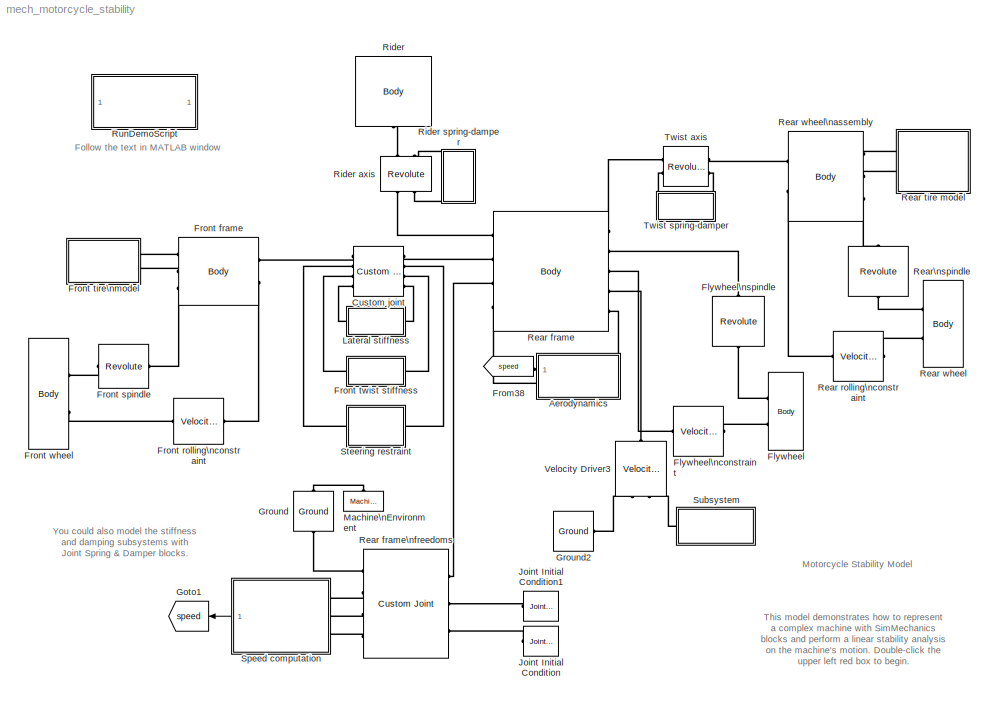
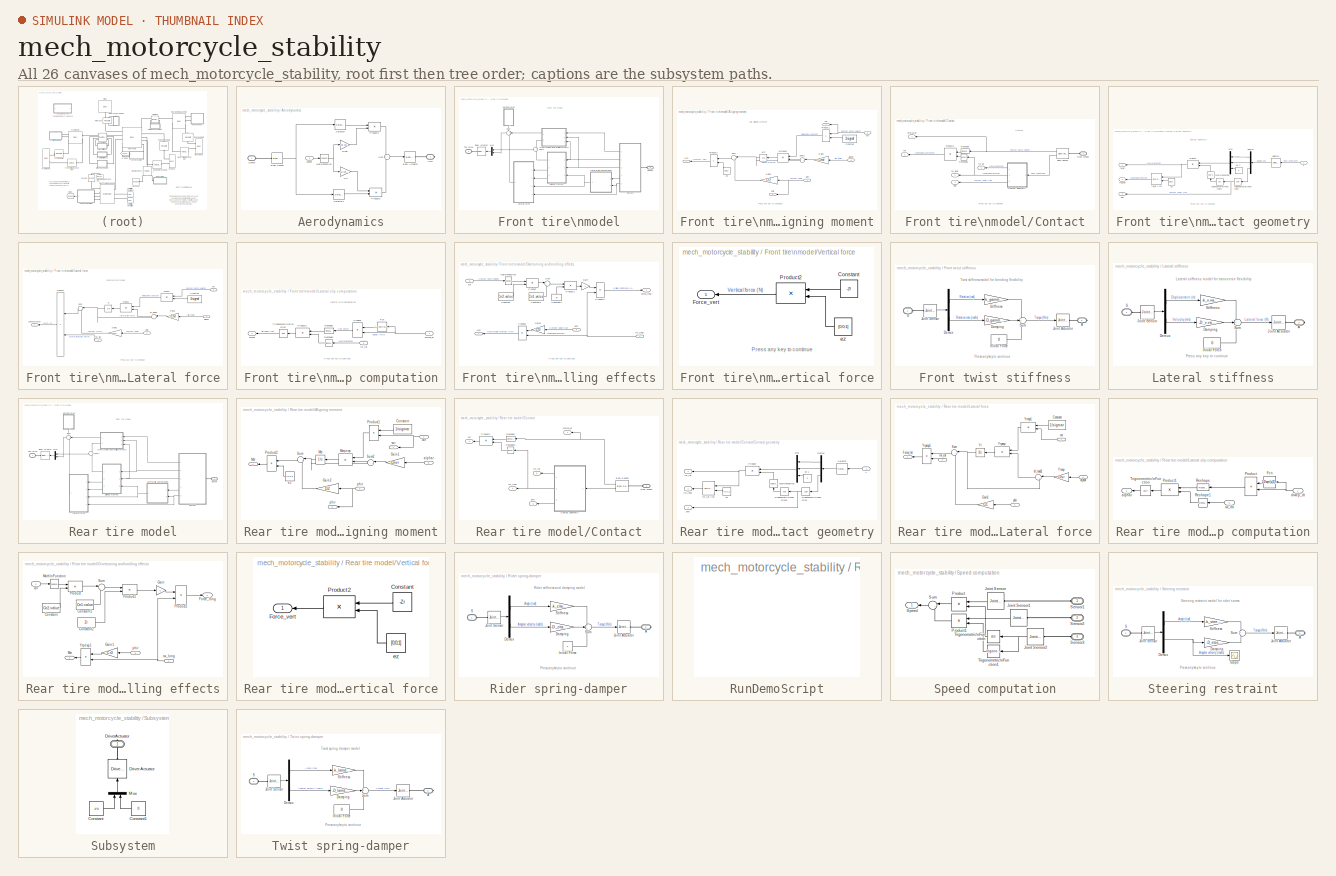
[diagram: thumbnail index - all 26 canvases of the model, root first then tree order]
MODEL mech_motorcycle_stability
KIND model
CONFIG PreLoadFcn = vu=53;mech_motorcycle_data
BLOCK [SubSystem] Aerodynamics
  MinAlgLoopOccurrences = off
  Ports = [1, 0, 0, 0, 0, 1, 1]
  RTWSystemCode = Auto
  TreatAsAtomicUnit = off
BLOCK [PMIOPort] Aerodynamics/Aero
  Port = 2
  Side = Right
BLOCK [Reference] Aerodynamics/Body Actuator  REF=mblibv1/Sensors & \nActuators/Body Actuator
  AccelerationUnits = m/s^2
  ActiveIO = on
  ActuationStyle = Force
  Angle = off
  AngleUnits = deg
  ArcAccelerationUnits = deg/s^2
  ArcVelocityUnits = deg/s
  ClassName = BodyActuatorForceTorque
  CoordPosition = on
  CoordPositionUnits = m
  DialogClass = MechanicalActuatorBlock
  Force = on
  ForceUnits = N
  Opaque = on
  PhysicalDomain = Mechanical
  PortType = blob
  Ports = [1, 0, 0, 0, 0, 0, 1]
  ReferenceFrame = Absolute (World)
  ShowPortLabels = on
  SourceBlock = mblibv1/Sensors & \nActuators/Body Actuator
  SourceType = msb
  Torque = off
  TorqueUnits = N-m
  VelocityUnits = m/s
  Width = 3
BLOCK [Reference] Aerodynamics/Body Sensor  REF=mblibv1/Sensors & \nActuators/Body Sensor
  Acceleration = off
  AccelerationUnits = m/s^2
  ActiveIO = on
  Angle = on
  AngleUnits = deg
  ArcAcceleration = off
  ArcAccelerationUnits = deg/s^2
  ArcVelocity = off
  ArcVelocityUnits = deg/s
  ClassName = BodySensor
  CoordPosition = off
  CoordPositionUnits = m
  DialogClass = MechanicalSensorBlock
  Muxed = on
  Opaque = on
  OutputVector = [ 9 ]
  PhysicalDomain = Mechanical
  PortType = blob
  Ports = [0, 1, 0, 0, 0, 1]
  Pose = on
  Quaternion = on
  QuaternionDDT = off
  QuaternionDT = off
  QuaternionUnits = off
  ReferenceFrame = Absolute (World)
  ShowPortLabels = on
  SourceBlock = mblibv1/Sensors & \nActuators/Body Sensor
  SourceType = msb
  Velocity = off
  VelocityUnits = m/s
  Width = 9
BLOCK [Gain] Aerodynamics/Drag
  Gain = -Dc.value
BLOCK [Gain] Aerodynamics/Lift
  Gain = -Lc.value
BLOCK [Math] Aerodynamics/Math\nFunction
  Operator = square
  Ports = [1, 1]
BLOCK [Product] Aerodynamics/Product2
  Ports = [2, 1]
  RndMeth = Floor
BLOCK [Product] Aerodynamics/Product3
  Ports = [2, 1]
  RndMeth = Floor
BLOCK [Selector] Aerodynamics/Selector
  Elements = [1:3]
  InputPortWidth = 9
  Ports = [1, 1]
BLOCK [Selector] Aerodynamics/Selector1
  Elements = [7:9]
  InputPortWidth = 9
  Ports = [1, 1]
BLOCK [PMIOPort] Aerodynamics/Sensor
  Port = 1
  Side = Left
BLOCK [Sum] Aerodynamics/Sum
  IconShape = round
  Ports = [2, 1]
BLOCK [Inport] Aerodynamics/speed
  IconDisplay = Port number
  LatchInput = off
  Port = 1
BLOCK [Reference] Custom joint  REF=mblibv1/Joints/Custom Joint
  ClassName = Joint
  CutJoint = off
  DialogClass = JointBlock
  LConnTagsString = __newl0|SA1|SA2|SA3
  LeftPortType = blob
  MarkAsCut = off
  NumSAPorts = 6
  PhysicalDomain = mechanical
  Ports = [0, 0, 0, 0, 0, 4, 4]
  PrimitiveProps = P1$WORLD$[0 1 0]$prismatic#R1$WORLD$[cos(epsilon) 0  -sin(epsilon)]$revolute#R2$WORLD$[sin(epsilon) 0 cos(epsilon)]$revolute
  Primitives = prismatic_revolute_revolute
  RConnTagsString = __newr0|SA1|SA2|SA3
  RightPortType = blob
  SourceBlock = mblibv1/Joints/Custom Joint
  SourceType = msb
  SubClassName = custom_joint
BLOCK [Reference] Flywheel  REF=mblibv1/Bodies/Body
  CG = Left$CG$p1.coordinates$WORLD$WORLD$m$[0 0 0]$Euler X-Y-Z$deg$WORLD$true
  ClassName = Body
  Density = 1
  DensityUnits = kg/m^3
  DensityUse = false
  DialogClass = MechanicalBodyBlock
  Inertia = [0 0 0;0 iry.value 0;0 0 0]
  InertiaUnits = kg*m^2
  LConnTagsString = CS2|CG
  LeftPortType = workingframe
  Mass = 0
  MassUnits = kg
  PhysicalDomain = mechanical
  Ports = [0, 0, 0, 0, 0, 2]
  RightPortType = workingframe
  Shape = Cylinder
  ShapeDims = [1 1]
  ShapeUnits = m
  ShapeUse = false
  SourceBlock = mblibv1/Bodies/Body
  SourceType = msb
  SubClassName = Unknown
  WorkingFrames = Left$CS2$p1.coordinates$WORLD$WORLD$m$[0 0 0]$Euler X-Y-Z$deg$WORLD$true
BLOCK [Reference] Flywheel\nconstraint  REF=mblibv1/Constraints & \nDrivers/Velocity Driver
  ClassName = ConstantVelocity
  Coef_Omega_Base = [0 0 0]
  Coef_Omega_Follower = Rr*[0 -1 0]
  Coef_V_Base = [1 0 0]
  Coef_V_Follower = [0 0 0]
  Csys_Omega_Base = Base
  Csys_Omega_Follower = Follower
  Csys_V_Base = Base
  Csys_V_Follower = Follower
  DialogClass = ConstantVelocityConstraint
  LConnTagsString = __newl0
  LeftPortType = blob
  NumSAPorts = 0
  PhysicalDomain = mechanical
  Ports = [0, 0, 0, 0, 0, 1, 1]
  RConnTagsString = __newr0
  RightPortType = blob
  SourceBlock = mblibv1/Constraints & \nDrivers/Velocity Driver
  SourceType = ConstantVelocityConstraint
  SubClassName = Unknown
  Unit_Omega = rad/s
  Unit_V = m/s
BLOCK [Reference] Flywheel\nspindle  REF=mblibv1/Joints/Revolute
  ClassName = Joint
  CutJoint = off
  DialogClass = JointBlock
  LConnTagsString = __newl0
  LeftPortType = blob
  MarkAsCut = off
  NumSAPorts = 0
  PhysicalDomain = mechanical
  Ports = [0, 0, 0, 0, 0, 1, 1]
  PrimitiveProps = R1$WORLD$[0 1 0]$revolute
  Primitives = revolute
  RConnTagsString = __newr0
  RightPortType = blob
  SourceBlock = mblibv1/Joints/Revolute
  SourceType = msb
  SubClassName = Unknown
BLOCK [From] From38
  CloseFcn = tagdialog Close
  DialogController = Simulink.DDGSource
  GotoTag = speed
BLOCK [Reference] Front frame  REF=mblibv1/Bodies/Body
  CG = Left$CG$p3.coordinates$WORLD$WORLD$m$[0 epsilon 0]$Euler X-Y-Z$rad$WORLD$false
  ClassName = Body
  Density = 1
  DensityUnits = kg/m^3
  DensityUse = false
  DialogClass = MechanicalBodyBlock
  Inertia = [Ifx.value 0 Ifxz.value;0 0 0;Ifxz.value 0 Ifz.value]
  InertiaUnits = kg*m^2
  LConnTagsString = CS1|CS6
  LeftPortType = workingframe
  Mass = Mf.value
  MassUnits = kg
  PhysicalDomain = mechanical
  Ports = [0, 0, 0, 0, 0, 2, 3]
  RConnTagsString = CS2|CS5|CS3
  RightPortType = workingframe
  Shape = Cylinder
  ShapeDims = [1 1]
  ShapeUnits = m
  ShapeUse = false
  SourceBlock = mblibv1/Bodies/Body
  SourceType = msb
  SubClassName = Unknown
  WorkingFrames = Left$CS1$p8.coordinates$WORLD$WORLD$m$[0 0 0]$Euler X-Y-Z$deg$WORLD$true#Right$CS2$p11.coordinates$WORLD$WORLD$m$[0 0 0]$Euler X-Y-Z$deg$WORLD$true#Right$CS5$p11.coordinates$WORLD$WORLD$m$[0 0 0]$Euler X-Y-Z$deg$WORLD$true#Right$CS3$p6.coordinates$WORLD$WORLD$m$[0 0 0]$Euler X-Y-Z$deg$WORLD$true#Left$CS6$p6.coordinates$WORLD$WORLD$m$[0 0 0]$Euler X-Y-Z$deg$WORLD$true
BLOCK [Reference] Front rolling\nconstraint  REF=mblibv1/Constraints & \nDrivers/Velocity Driver
  ClassName = ConstantVelocity
  Coef_Omega_Base = [0 0 0]
  Coef_Omega_Follower = Rf*[0 -1 0]
  Coef_V_Base = [1 0 0]
  Coef_V_Follower = [0 0 0]
  Csys_Omega_Base = Base
  Csys_Omega_Follower = Follower
  Csys_V_Base = Base
  Csys_V_Follower = Follower
  DialogClass = ConstantVelocityConstraint
  LConnTagsString = __newl0
  LeftPortType = blob
  NumSAPorts = 0
  PhysicalDomain = mechanical
  Ports = [0, 0, 0, 0, 0, 1, 1]
  RConnTagsString = __newr0
  RightPortType = blob
  SourceBlock = mblibv1/Constraints & \nDrivers/Velocity Driver
  SourceType = ConstantVelocityConstraint
  SubClassName = Unknown
  Unit_Omega = rad/s
  Unit_V = m/s
BLOCK [Reference] Front spindle  REF=mblibv1/Joints/Revolute
  ClassName = Joint
  CutJoint = off
  DialogClass = JointBlock
  LConnTagsString = __newl0
  LeftPortType = blob
  MarkAsCut = off
  NumSAPorts = 0
  PhysicalDomain = mechanical
  Ports = [0, 0, 0, 0, 0, 1, 1]
  PrimitiveProps = R1$WORLD$[0 1 0]$revolute
  Primitives = revolute
  RConnTagsString = __newr0
  RightPortType = blob
  SourceBlock = mblibv1/Joints/Revolute
  SourceType = msb
  SubClassName = Unknown
BLOCK [SubSystem] Front tire\nmodel
  MinAlgLoopOccurrences = off
  Ports = [0, 0, 0, 0, 0, 2]
  RTWSystemCode = Auto
  TreatAsAtomicUnit = off
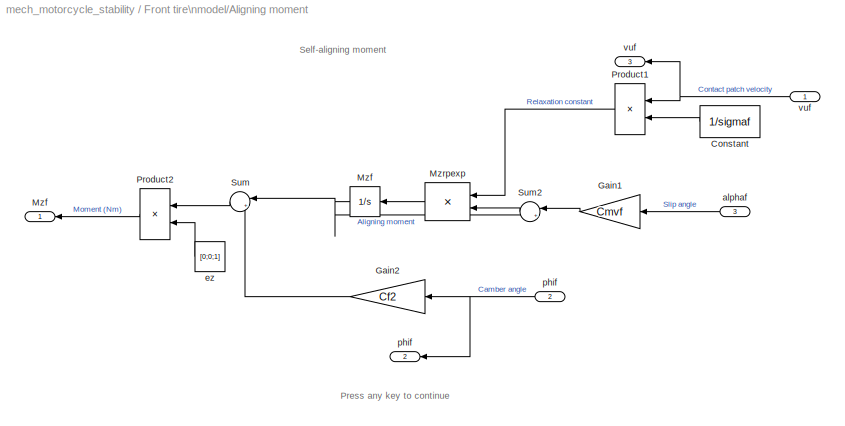
BLOCK [SubSystem] Front tire\nmodel/Aligning moment
  MinAlgLoopOccurrences = off
  Ports = [3, 3]
  RTWSystemCode = Auto
  TreatAsAtomicUnit = off
BLOCK [Constant] Front tire\nmodel/Aligning moment/Constant
  Value = 1/sigmaf
BLOCK [Gain] Front tire\nmodel/Aligning moment/Gain1
  Gain = Cmvf
BLOCK [Gain] Front tire\nmodel/Aligning moment/Gain2
  Gain = Cf2
BLOCK [Outport] Front tire\nmodel/Aligning moment/Mzf
  BusOutputAsStruct = off
  IconDisplay = Port number
BLOCK [Integrator] Front tire\nmodel/Aligning moment/Mzf  
  Ports = [1, 1]
  ZeroCross = off
BLOCK [Product] Front tire\nmodel/Aligning moment/Mzrpexp
  Ports = [2, 1]
  RndMeth = Floor
BLOCK [Product] Front tire\nmodel/Aligning moment/Product1
  Ports = [2, 1]
  RndMeth = Floor
BLOCK [Product] Front tire\nmodel/Aligning moment/Product2
  Ports = [2, 1]
  RndMeth = Floor
BLOCK [Sum] Front tire\nmodel/Aligning moment/Sum
  IconShape = round
  Inputs = |++
  Ports = [2, 1]
BLOCK [Sum] Front tire\nmodel/Aligning moment/Sum2
  IconShape = round
  Inputs = |+-
  Ports = [2, 1]
BLOCK [Inport] Front tire\nmodel/Aligning moment/alphaf
  IconDisplay = Port number
  LatchInput = off
  Port = 3
BLOCK [Constant] Front tire\nmodel/Aligning moment/ez
  Value = [0;0;1]
BLOCK [Inport] Front tire\nmodel/Aligning moment/phif
  IconDisplay = Port number
  LatchInput = off
  Port = 2
BLOCK [Outport] Front tire\nmodel/Aligning moment/phif 
  BusOutputAsStruct = off
  IconDisplay = Port number
  Port = 2
BLOCK [Inport] Front tire\nmodel/Aligning moment/vuf
  IconDisplay = Port number
  LatchInput = off
  Port = 1
BLOCK [Outport] Front tire\nmodel/Aligning moment/vuf 
  BusOutputAsStruct = off
  IconDisplay = Port number
  Port = 3
BLOCK [Reference] Front tire\nmodel/Body Actuator  REF=mblibv1/Sensors & \nActuators/Body Actuator
  AccelerationUnits = m/s^2
  ActiveIO = on
  ActuationStyle = Force
  Angle = off
  AngleUnits = deg
  ArcAccelerationUnits = deg/s^2
  ArcVelocityUnits = deg/s
  ClassName = BodyActuatorForceTorque
  CoordPosition = off
  CoordPositionUnits = m
  DialogClass = MechanicalActuatorBlock
  Force = on
  ForceUnits = N
  Opaque = on
  PhysicalDomain = Mechanical
  PortType = blob
  Ports = [1, 0, 0, 0, 0, 0, 1]
  ReferenceFrame = Absolute (World)
  ShowPortLabels = on
  SourceBlock = mblibv1/Sensors & \nActuators/Body Actuator
  SourceType = msb
  Torque = on
  TorqueUnits = N-m
  VelocityUnits = m/s
  Width = 6
BLOCK [SubSystem] Front tire\nmodel/Contact
  MinAlgLoopOccurrences = off
  Ports = [0, 5, 0, 0, 0, 1]
  RTWSystemCode = Auto
  TreatAsAtomicUnit = off
BLOCK [Reference] Front tire\nmodel/Contact/Body Sensor  REF=mblibv1/Sensors & \nActuators/Body Sensor
  Acceleration = off
  AccelerationUnits = m/s^2
  ActiveIO = on
  Angle = on
  AngleUnits = deg
  ArcAcceleration = off
  ArcAccelerationUnits = rad/s^2
  ArcVelocity = off
  ArcVelocityUnits = rad/s
  ClassName = BodySensor
  CoordPosition = off
  CoordPositionUnits = m
  DialogClass = MechanicalSensorBlock
  Muxed = off
  Opaque = on
  OutputVector = [ 3 9 ]
  PhysicalDomain = Mechanical
  PortType = blob
  Ports = [0, 2, 0, 0, 0, 1]
  Pose = on
  Quaternion = on
  QuaternionDDT = off
  QuaternionDT = off
  QuaternionUnits = off
  ReferenceFrame = Absolute (World)
  ShowPortLabels = on
  SourceBlock = mblibv1/Sensors & \nActuators/Body Sensor
  SourceType = msb
  Velocity = on
  VelocityUnits = m/s
  Width = 12
BLOCK [SubSystem] Front tire\nmodel/Contact/Contact geometry
  MinAlgLoopOccurrences = off
  Ports = [1, 3]
  RTWSystemCode = Auto
  TreatAsAtomicUnit = off
BLOCK [Demux] Front tire\nmodel/Contact/Contact geometry/Demux
  Outputs = 3
  Ports = [1, 3]
BLOCK [Math] Front tire\nmodel/Contact/Contact geometry/Math\nFunction
  Operator = reciprocal
  Ports = [1, 1]
BLOCK [Mux] Front tire\nmodel/Contact/Contact geometry/Mux
  DisplayOption = bar
  Inputs = 3
  Ports = [3, 1]
BLOCK [Product] Front tire\nmodel/Contact/Contact geometry/Product
  Ports = [2, 1]
  RndMeth = Floor
BLOCK [Selector] Front tire\nmodel/Contact/Contact geometry/Selector
  Elements = [4:6]
  InputPortWidth = 9
  Ports = [1, 1]
BLOCK [Inport] Front tire\nmodel/Contact/Contact geometry/T
  IconDisplay = Port number
  LatchInput = off
  Port = 1
BLOCK [Trigonometry] Front tire\nmodel/Contact/Contact geometry/Trigonometric\nFunction
  Operator = asin
  Ports = [1, 1]
BLOCK [Trigonometry] Front tire\nmodel/Contact/Contact geometry/Trigonometric\nFunction1
  Operator = cos
  Ports = [1, 1]
BLOCK [Constant] Front tire\nmodel/Contact/Contact geometry/ez 
  Value = [0,0,1]
BLOCK [Constant] Front tire\nmodel/Contact/Contact geometry/ez 1
  Value = 0
BLOCK [Outport] Front tire\nmodel/Contact/Contact geometry/fw_lat
  BusOutputAsStruct = off
  IconDisplay = Port number
BLOCK [Reference] Front tire\nmodel/Contact/Contact geometry/fw_lat x ez  REF=aerospace/Axes\nTransformations/3x3 cross product  (lib defined in mdl_cf564d925549, slx_1354fe9238a2, +3 more)
  Ports = [2, 1]
  ShowPortLabels = off
  SourceBlock = aerospace/Axes\nTransformations/3x3 cross product
  SourceType = Cross Product
BLOCK [Outport] Front tire\nmodel/Contact/Contact geometry/fw_long
  BusOutputAsStruct = off
  IconDisplay = Port number
  Port = 2
BLOCK [Outport] Front tire\nmodel/Contact/Contact geometry/phif
  BusOutputAsStruct = off
  IconDisplay = Port number
  Port = 3
BLOCK [Product] Front tire\nmodel/Contact/Product1
  Multiplication = Matrix(*)
  Ports = [2, 1]
  RndMeth = Floor
BLOCK [PMIOPort] Front tire\nmodel/Contact/Rear Wheel
  Port = 1
  Side = Left
BLOCK [Reference] Front tire\nmodel/Contact/Reshape  REF=simulink/Math\nOperations/Reshape
  OutputDimensionality = Row vector
  OutputDimensions = [1,1]
  Ports = [1, 1]
  SourceBlock = simulink/Math\nOperations/Reshape
  SourceType = Reshape
BLOCK [Reference] Front tire\nmodel/Contact/Reshape1  REF=simulink/Math\nOperations/Reshape
  OutputDimensionality = Column vector
  OutputDimensions = [1,1]
  Ports = [1, 1]
  SourceBlock = simulink/Math\nOperations/Reshape
  SourceType = Reshape
BLOCK [Outport] Front tire\nmodel/Contact/dfwcp_dt
  BusOutputAsStruct = off
  IconDisplay = Port number
  Port = 4
BLOCK [Outport] Front tire\nmodel/Contact/fw_lat
  BusOutputAsStruct = off
  IconDisplay = Port number
  Port = 5
BLOCK [Outport] Front tire\nmodel/Contact/fw_long
  BusOutputAsStruct = off
  IconDisplay = Port number
BLOCK [Outport] Front tire\nmodel/Contact/phif
  BusOutputAsStruct = off
  IconDisplay = Port number
  Port = 3
BLOCK [Outport] Front tire\nmodel/Contact/vuf
  BusOutputAsStruct = off
  IconDisplay = Port number
  Port = 2
BLOCK [SubSystem] Front tire\nmodel/Lateral force
  MinAlgLoopOccurrences = off
  Ports = [4, 1]
  RTWSystemCode = Auto
  TreatAsAtomicUnit = off
BLOCK [Constant] Front tire\nmodel/Lateral force/Constant
  Value = 1/sigmaf
BLOCK [Gain] Front tire\nmodel/Lateral force/Gain1
  Gain = Cf1
BLOCK [Outport] Front tire\nmodel/Lateral force/Lateral force
  BusOutputAsStruct = off
  IconDisplay = Port number
BLOCK [Sum] Front tire\nmodel/Lateral force/Sum
  IconShape = round
  Inputs = |++
  Ports = [2, 1]
BLOCK [Integrator] Front tire\nmodel/Lateral force/Yf
  Ports = [1, 1]
  ZeroCross = off
BLOCK [Gain] Front tire\nmodel/Lateral force/Yrexp
  Gain = -Cfvf
BLOCK [Product] Front tire\nmodel/Lateral force/Yrexp1
  Ports = [2, 1]
  RndMeth = Floor
BLOCK [Product] Front tire\nmodel/Lateral force/Yrpexp
  Ports = [2, 1]
  RndMeth = Floor
BLOCK [Product] Front tire\nmodel/Lateral force/Yrpexp1
  Ports = [2, 1]
  RndMeth = Floor
BLOCK [Inport] Front tire\nmodel/Lateral force/alphaf
  IconDisplay = Port number
  LatchInput = off
  Port = 3
BLOCK [Sum] Front tire\nmodel/Lateral force/dr_load1
  IconShape = round
  Inputs = |+-
  Ports = [2, 1]
BLOCK [Inport] Front tire\nmodel/Lateral force/fw_lat
  IconDisplay = Port number
  LatchInput = off
  Port = 4
BLOCK [Inport] Front tire\nmodel/Lateral force/phif
  IconDisplay = Port number
  LatchInput = off
  Port = 1
BLOCK [Inport] Front tire\nmodel/Lateral force/vuf
  IconDisplay = Port number
  LatchInput = off
  Port = 2
BLOCK [SubSystem] Front tire\nmodel/Lateral slip computation
  MinAlgLoopOccurrences = off
  Ports = [2, 1]
  RTWSystemCode = Auto
  TreatAsAtomicUnit = off
BLOCK [Fcn] Front tire\nmodel/Lateral slip computation/Fcn
  Expr = 1.0/sqrt(u[1]*u[1] + u[2]*u[2] + u[3]*u[3])
BLOCK [Product] Front tire\nmodel/Lateral slip computation/Product
  Ports = [2, 1]
  RndMeth = Floor
BLOCK [Product] Front tire\nmodel/Lateral slip computation/Product1
  Multiplication = Matrix(*)
  Ports = [2, 1]
  RndMeth = Floor
BLOCK [Reference] Front tire\nmodel/Lateral slip computation/Reshape  REF=simulink/Math\nOperations/Reshape
  OutputDimensionality = Row vector
  OutputDimensions = [1,1]
  Ports = [1, 1]
  SourceBlock = simulink/Math\nOperations/Reshape
  SourceType = Reshape
BLOCK [Reference] Front tire\nmodel/Lateral slip computation/Reshape1  REF=simulink/Math\nOperations/Reshape
  OutputDimensionality = Column vector
  OutputDimensions = [1,1]
  Ports = [1, 1]
  SourceBlock = simulink/Math\nOperations/Reshape
  SourceType = Reshape
BLOCK [Trigonometry] Front tire\nmodel/Lateral slip computation/Trigonometric\nFunction
  Operator = asin
  Ports = [1, 1]
BLOCK [Outport] Front tire\nmodel/Lateral slip computation/alphaf
  BusOutputAsStruct = off
  IconDisplay = Port number
BLOCK [Inport] Front tire\nmodel/Lateral slip computation/dfwcp_dt
  IconDisplay = Port number
  LatchInput = off
  Port = 1
BLOCK [Inport] Front tire\nmodel/Lateral slip computation/fw_lat
  IconDisplay = Port number
  LatchInput = off
  Port = 2
BLOCK [Mux] Front tire\nmodel/Mux
  DisplayOption = bar
  Inputs = 2
  Ports = [2, 1]
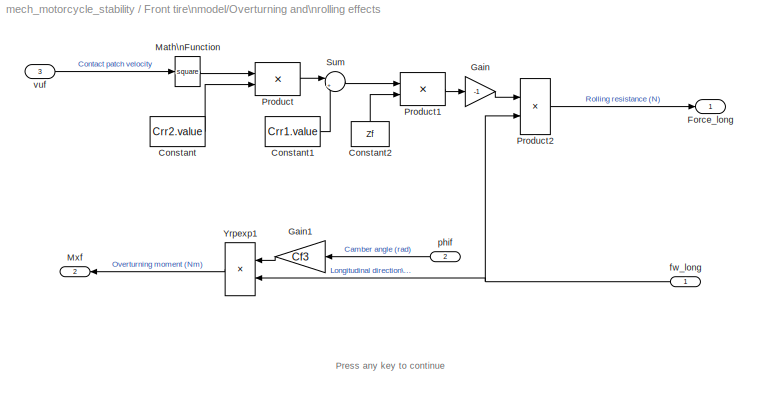
BLOCK [SubSystem] Front tire\nmodel/Overturning and\nrolling effects
  MinAlgLoopOccurrences = off
  Ports = [3, 2]
  RTWSystemCode = Auto
  TreatAsAtomicUnit = off
BLOCK [Constant] Front tire\nmodel/Overturning and\nrolling effects/Constant
  Value = Crr2.value
BLOCK [Constant] Front tire\nmodel/Overturning and\nrolling effects/Constant1
  Value = Crr1.value
BLOCK [Constant] Front tire\nmodel/Overturning and\nrolling effects/Constant2
  Value = Zf
BLOCK [Outport] Front tire\nmodel/Overturning and\nrolling effects/Force_long
  BusOutputAsStruct = off
  IconDisplay = Port number
BLOCK [Gain] Front tire\nmodel/Overturning and\nrolling effects/Gain
  Gain = -1
BLOCK [Gain] Front tire\nmodel/Overturning and\nrolling effects/Gain1
  Gain = Cf3
BLOCK [Math] Front tire\nmodel/Overturning and\nrolling effects/Math\nFunction
  Operator = square
  Ports = [1, 1]
BLOCK [Outport] Front tire\nmodel/Overturning and\nrolling effects/Mxf
  BusOutputAsStruct = off
  IconDisplay = Port number
  Port = 2
BLOCK [Product] Front tire\nmodel/Overturning and\nrolling effects/Product
  Ports = [2, 1]
  RndMeth = Floor
BLOCK [Product] Front tire\nmodel/Overturning and\nrolling effects/Product1
  Ports = [2, 1]
  RndMeth = Floor
BLOCK [Product] Front tire\nmodel/Overturning and\nrolling effects/Product2
  Ports = [2, 1]
  RndMeth = Floor
BLOCK [Sum] Front tire\nmodel/Overturning and\nrolling effects/Sum
  IconShape = round
  Inputs = |++
  Ports = [2, 1]
BLOCK [Product] Front tire\nmodel/Overturning and\nrolling effects/Yrpexp1
  Ports = [2, 1]
  RndMeth = Floor
BLOCK [Inport] Front tire\nmodel/Overturning and\nrolling effects/fw_long
  IconDisplay = Port number
  LatchInput = off
  Port = 1
BLOCK [Inport] Front tire\nmodel/Overturning and\nrolling effects/phif
  IconDisplay = Port number
  LatchInput = off
  Port = 2
BLOCK [Inport] Front tire\nmodel/Overturning and\nrolling effects/vuf
  IconDisplay = Port number
  LatchInput = off
  Port = 3
BLOCK [PMIOPort] Front tire\nmodel/Sensor
  Port = 2
  Side = Left
BLOCK [Sum] Front tire\nmodel/Sum
  IconShape = round
  Inputs = +++
  Ports = [3, 1]
BLOCK [Sum] Front tire\nmodel/Sum1
  IconShape = round
  Ports = [2, 1]
BLOCK [PMIOPort] Front tire\nmodel/Tire force
  Port = 1
  Side = Left
  Tag = PMCPort
BLOCK [SubSystem] Front tire\nmodel/Vertical force
  MinAlgLoopOccurrences = off
  Ports = [0, 1]
  RTWSystemCode = Auto
  TreatAsAtomicUnit = off
BLOCK [Constant] Front tire\nmodel/Vertical force/Constant
  Value = -Zf
BLOCK [Outport] Front tire\nmodel/Vertical force/Force_vert
  BusOutputAsStruct = off
  IconDisplay = Port number
BLOCK [Product] Front tire\nmodel/Vertical force/Product2
  Ports = [2, 1]
  RndMeth = Floor
BLOCK [Constant] Front tire\nmodel/Vertical force/ez
  Value = [0;0;1]
BLOCK [SubSystem] Front twist stiffness
  MinAlgLoopOccurrences = off
  Ports = [0, 0, 0, 0, 0, 1, 1]
  RTWSystemCode = Auto
  TreatAsAtomicUnit = off
BLOCK [PMIOPort] Front twist stiffness/A
  Port = 2
  Side = Right
BLOCK [Gain] Front twist stiffness/Damping
  Gain = -D_gamma.value
BLOCK [Demux] Front twist stiffness/Demux
  Outputs = 2
  Ports = [1, 2]
BLOCK [Constant] Front twist stiffness/Initial Force
  Value = 0
BLOCK [Reference] Front twist stiffness/Joint Actuator  REF=mblibv1/Sensors & \nActuators/Joint Actuator
  AccelerationUnits = m/s^2
  ActiveIO = on
  ActuationStyle = Force
  AngleUnits = rad
  ArcAccelerationUnits = rad/s^2
  ArcVelocityUnits = rad/s
  ClassName = JointActuator
  CoordPositionUnits = m
  DialogClass = MechanicalActuatorBlock
  ForceUnits = N
  Opaque = on
  PhysicalDomain = Mechanical
  PortType = blob
  Ports = [1, 0, 0, 0, 0, 0, 1]
  Primitive = R1
  ReferenceFrame = Absolute (INERTIAL)
  ShowPortLabels = on
  SourceBlock = mblibv1/Sensors & \nActuators/Joint Actuator
  SourceType = msb
  TorqueUnits = N-m
  VelocityUnits = m/s
  Width = 1
BLOCK [Reference] Front twist stiffness/Joint Sensor  REF=mblibv1/Sensors & \nActuators/Joint Sensor
  Acceleration = off
  AccelerationUnits = m/s^2
  ActiveIO = on
  Angle = on
  AngleUnits = rad
  ArcAcceleration = off
  ArcAccelerationUnits = deg/s^2
  ArcVelocity = on
  ArcVelocityUnits = rad/s
  ClassName = JointSensor
  CoordPosition = on
  CoordPositionUnits = m
  DialogClass = MechanicalSensorBlock
  Force = off
  ForceUnits = N
  Muxed = on
  Opaque = on
  OutputVector = [ 1 1 ]
  PhysicalDomain = Mechanical
  PortType = blob
  Ports = [0, 1, 0, 0, 0, 1]
  Pose = off
  Primitive = R1
  Quaternion = on
  QuaternionDDT = off
  QuaternionDT = off
  QuaternionUnits = off
  ReactionForce = off
  ReactionForceUnits = N
  ReactionMoment = off
  ReactionMomentUnits = N-m
  ReactionReferenceFrame = Absolute (World)
  ReactionSensedSide = Base
  ReferenceFrame = Absolute (INERTIAL)
  ShowPortLabels = on
  SourceBlock = mblibv1/Sensors & \nActuators/Joint Sensor
  SourceType = msb
  Torque = off
  TorqueUnits = N-m
  Velocity = on
  VelocityUnits = m/s
  Width = 2
BLOCK [PMIOPort] Front twist stiffness/S
  Port = 1
  Side = Left
BLOCK [Gain] Front twist stiffness/Stiffness
  Gain = -k_gamma.value
BLOCK [Sum] Front twist stiffness/Sum
  IconShape = round
  Inputs = +++
  Ports = [3, 1]
BLOCK [Reference] Front wheel  REF=mblibv1/Bodies/Body
  CG = Left$CG$p6.coordinates$WORLD$WORLD$m$[0 0 0]$Euler X-Y-Z$deg$WORLD$true
  ClassName = Body
  Density = 1
  DensityUnits = kg/m^3
  DensityUse = false
  DialogClass = MechanicalBodyBlock
  Inertia = [0 0 0;0 ifwy.value 0;0 0 0]
  InertiaUnits = kg*m^2
  LConnTagsString = CS1|CG
  LeftPortType = workingframe
  Mass = Mfw
  MassUnits = kg
  PhysicalDomain = mechanical
  Ports = [0, 0, 0, 0, 0, 2]
  RightPortType = workingframe
  Shape = Cylinder
  ShapeDims = [1 1]
  ShapeUnits = m
  ShapeUse = false
  SourceBlock = mblibv1/Bodies/Body
  SourceType = msb
  SubClassName = Unknown
  WorkingFrames = Left$CS1$p6.coordinates$WORLD$WORLD$m$[0 0 0]$Euler X-Y-Z$deg$WORLD$true
BLOCK [Goto] Goto1
  DialogController = Simulink.DDGSource
  GotoTag = speed
  TagVisibility = local
BLOCK [Reference] Ground  REF=mblibv1/Bodies/Ground
  ClassName = Ground
  CoordPosition = p1.coordinates
  CoordPositionUnits = m
  DialogClass = GroundBlock
  LeftPortType = env
  MachineId = [0 0]
  Opaque = on
  PhysicalDomain = Mechanical
  Ports = [0, 0, 0, 0, 0, 1, 1]
  RightPortType = workingframe
  ShowEnvPort = on
  ShowPortLabels = on
  SourceBlock = mblibv1/Bodies/Ground
  SourceType = msb
  StateVectorMgrId = -1
  UserData = DataTag0
  UserDataPersistent = on
BLOCK [Reference] Ground2  REF=mblibv1/Bodies/Ground
  ClassName = Ground
  CoordPosition = p7.coordinates
  CoordPositionUnits = m
  DialogClass = GroundBlock
  LeftPortType = env
  MachineId = [0 0]
  Opaque = on
  PhysicalDomain = Mechanical
  Ports = [0, 0, 0, 0, 0, 0, 1]
  RightPortType = workingframe
  ShowEnvPort = off
  ShowPortLabels = on
  SourceBlock = mblibv1/Bodies/Ground
  SourceType = msb
  StateVectorMgrId = -1
  UserData = DataTag1
  UserDataPersistent = on
BLOCK [Reference] Joint Initial Condition  REF=mblibv1/Sensors & \nActuators/Joint Initial Condition
  AngleUnits = rad
  ArcVelocityUnits = rad/s
  ClassName = InitialCondition
  CoordPosition = 0.005
  CoordPositionUnits = m
  DialogClass = InitialConditionBlock
  InitialConditions = P1$false$0$m$rad$0$m/s$rad/s#P2$false$0$m$rad$0$m/s$rad/s#P3$false$0$m$rad$0$m/s$rad/s#R1$false$0$m$rad$0$m/s$rad/s#R2$true$0.005$m$rad$0.0$m/s$rad/s#R3$false$0$m$rad$0$m/s$rad/s#S$false$0$m$rad$0$m/s$rad/s
  Opaque = on
  PhysicalDomain = Mechanical
  Ports = [0, 0, 0, 0, 0, 0, 1]
  Primitive = R2
  ShowPortLabels = on
  SourceBlock = mblibv1/Sensors & \nActuators/Joint Initial Condition
  SourceType = msb
  Velocity = 0.0
  VelocityUnits = m/s
BLOCK [Reference] Joint Initial Condition1  REF=mblibv1/Sensors & \nActuators/Joint Initial Condition
  AngleUnits = rad
  ArcVelocityUnits = rad/s
  ClassName = InitialCondition
  CoordPosition = 0.0
  CoordPositionUnits = m
  DialogClass = InitialConditionBlock
  InitialConditions = P1$false$0$m$rad$0$m/s$rad/s#P2$false$0$m$rad$0$m/s$rad/s#P3$false$0$m$rad$0$m/s$rad/s#R1$true$0.0$m$rad$0.0$m/s$rad/s#R2$false$0$m$rad$0$m/s$rad/s#R3$false$0$m$rad$0$m/s$rad/s#S$false$0$m$rad$0$m/s$rad/s
  Opaque = on
  PhysicalDomain = Mechanical
  Ports = [0, 0, 0, 0, 0, 0, 1]
  Primitive = R1
  ShowPortLabels = on
  SourceBlock = mblibv1/Sensors & \nActuators/Joint Initial Condition
  SourceType = msb
  Velocity = 0.0
  VelocityUnits = m/s
BLOCK [SubSystem] Lateral stiffness
  MinAlgLoopOccurrences = off
  Ports = [0, 0, 0, 0, 0, 1, 1]
  RTWSystemCode = Auto
  TreatAsAtomicUnit = off
BLOCK [PMIOPort] Lateral stiffness/A
  Port = 2
  Side = Right
BLOCK [Gain] Lateral stiffness/Damping
  Gain = -D_v.value
BLOCK [Demux] Lateral stiffness/Demux
  Outputs = 2
  Ports = [1, 2]
BLOCK [Constant] Lateral stiffness/Initial Force
  Value = 0
BLOCK [Reference] Lateral stiffness/Joint Actuator  REF=mblibv1/Sensors & \nActuators/Joint Actuator
  AccelerationUnits = m/s^2
  ActiveIO = on
  ActuationStyle = Force
  AngleUnits = rad
  ArcAccelerationUnits = rad/s^2
  ArcVelocityUnits = rad/s
  ClassName = JointActuator
  CoordPositionUnits = m
  DialogClass = MechanicalActuatorBlock
  ForceUnits = N
  Opaque = on
  PhysicalDomain = Mechanical
  PortType = blob
  Ports = [1, 0, 0, 0, 0, 0, 1]
  Primitive = P1
  ReferenceFrame = Absolute (INERTIAL)
  ShowPortLabels = on
  SourceBlock = mblibv1/Sensors & \nActuators/Joint Actuator
  SourceType = msb
  TorqueUnits = N-m
  VelocityUnits = m/s
  Width = 1
BLOCK [Reference] Lateral stiffness/Joint Sensor  REF=mblibv1/Sensors & \nActuators/Joint Sensor
  Acceleration = off
  AccelerationUnits = m/s^2
  ActiveIO = on
  Angle = on
  AngleUnits = rad
  ArcAcceleration = off
  ArcAccelerationUnits = deg/s^2
  ArcVelocity = on
  ArcVelocityUnits = rad/s
  ClassName = JointSensor
  CoordPosition = on
  CoordPositionUnits = m
  DialogClass = MechanicalSensorBlock
  Force = off
  ForceUnits = N
  Muxed = on
  Opaque = on
  OutputVector = [ 1 1 ]
  PhysicalDomain = Mechanical
  PortType = blob
  Ports = [0, 1, 0, 0, 0, 1]
  Pose = off
  Primitive = P1
  Quaternion = on
  QuaternionDDT = off
  QuaternionDT = off
  QuaternionUnits = off
  ReactionForce = off
  ReactionForceUnits = N
  ReactionMoment = off
  ReactionMomentUnits = N-m
  ReactionReferenceFrame = Absolute (World)
  ReactionSensedSide = Base
  ReferenceFrame = Absolute (INERTIAL)
  ShowPortLabels = on
  SourceBlock = mblibv1/Sensors & \nActuators/Joint Sensor
  SourceType = msb
  Torque = off
  TorqueUnits = N-m
  Velocity = on
  VelocityUnits = m/s
  Width = 2
BLOCK [PMIOPort] Lateral stiffness/S
  Port = 1
  Side = Left
BLOCK [Gain] Lateral stiffness/Stiffness
  Gain = -k_v.value
BLOCK [Sum] Lateral stiffness/Sum
  IconShape = round
  Inputs = +++
  Ports = [3, 1]
BLOCK [Reference] Machine\nEnvironment  REF=mblibv1/Bodies/Machine\nEnvironment
  AnalysisType = Forward dynamics
  AngularAssemblyTolerance = 1e-3
  AngularAssemblyToleranceUnits = rad
  ClassName = Environment
  ConstraintAbsTolerance = 1e-4
  ConstraintRelTolerance = 1e-4
  ConstraintSolverType = Stabilizing
  DialogController = MECH.DialogSource
  DialogTemplateClass = MECH.MachineEnvironment
  Dimensionality = 3D Only
  Gravity = [0;0;G]
  GravityAsSignal = off
  GravityUnits = m/s^2
  LinearAssemblyTolerance = 1e-3
  LinearAssemblyToleranceUnits = m
  Opaque = on
  PerturbationSize = 1e-5
  PhysicalDomain = Mechanical
  PortType = env
  Ports = [0, 0, 0, 0, 0, 0, 1]
  ShowPortLabels = on
  SourceBlock = mblibv1/Bodies/Machine\nEnvironment
  SourceType = Mechanical
  StatePerturbationType = Fixed
  SyncWhenCopied = off
  Tag = Factory ground
  UseRobustSingularityHandling = off
  VisualizeMachine = on
BLOCK [Reference] Rear frame  REF=mblibv1/Bodies/Body
  CG = Right$CG$p1.coordinates$WORLD$WORLD$m$[0 0 0]$Euler X-Y-Z$deg$WORLD$false
  ClassName = Body
  Density = 1
  DensityUnits = kg/m^3
  DensityUse = false
  DialogClass = MechanicalBodyBlock
  Inertia = [Irx.value 0 Irxz.value;0 0 0;Irxz.value 0 Irz.value]
  InertiaUnits = kg*m^2
  LConnTagsString = CS1|CS3|CS6|CS9
  LeftPortType = workingframe
  Mass = Mr.value
  MassUnits = kg
  PhysicalDomain = mechanical
  Ports = [0, 0, 0, 0, 0, 4, 5]
  RConnTagsString = CS2|CS7|CS8|CS11|CS10
  RightPortType = workingframe
  Shape = Cylinder
  ShapeDims = [1 1]
  ShapeUnits = m
  ShapeUse = false
  SourceBlock = mblibv1/Bodies/Body
  SourceType = msb
  SubClassName = Unknown
  WorkingFrames = Left$CS1$p9.coordinates$WORLD$WORLD$m$[0 0 0]$Euler X-Y-Z$deg$WORLD$true#Right$CS2$p7.coordinates$WORLD$WORLD$m$[0 0 0]$Euler X-Y-Z$deg$WORLD$true#Left$CS3$p8.coordinates$WORLD$WORLD$m$[0 0 0]$Euler X-Y-Z$deg$WORLD$true#Left$CS6$p1.coordinates$WORLD$WORLD$m$[0 0 0]$Euler X-Y-Z$deg$WORLD$true#Right$CS7$p1.coordinates$WORLD$WORLD$m$[0 0 0]$Euler X-Y-Z$deg$WORLD$true#Right$CS8$p1.coordinates$WORLD$WO...<+266ch>
BLOCK [Reference] Rear frame\nfreedoms  REF=mblibv1/Joints/Custom Joint
  ClassName = Joint
  CutJoint = off
  DialogClass = JointBlock
  LConnTagsString = __newl0|SA1|SA2|SA3
  LeftPortType = blob
  MarkAsCut = off
  NumSAPorts = 5
  PhysicalDomain = mechanical
  Ports = [0, 0, 0, 0, 0, 4, 3]
  PrimitiveProps = P1$WORLD$[1 0 0]$prismatic#P2$WORLD$[0 1 0]$prismatic#R1$WORLD$[0 0 1]$revolute#R2$WORLD$[1 0 0]$revolute
  Primitives = prismatic_prismatic_revolute_revolute
  RConnTagsString = __newr0|SA1|SA2
  RightPortType = blob
  SourceBlock = mblibv1/Joints/Custom Joint
  SourceType = msb
  SubClassName = custom_joint
BLOCK [Reference] Rear rolling\nconstraint  REF=mblibv1/Constraints & \nDrivers/Velocity Driver
  ClassName = ConstantVelocity
  Coef_Omega_Base = [0 0 0]
  Coef_Omega_Follower = Rr*[0 -1 0]
  Coef_V_Base = [1 0 0]
  Coef_V_Follower = [0 0 0]
  Csys_Omega_Base = Base
  Csys_Omega_Follower = Follower
  Csys_V_Base = Base
  Csys_V_Follower = Follower
  DialogClass = ConstantVelocityConstraint
  LConnTagsString = __newl0
  LeftPortType = blob
  NumSAPorts = 0
  PhysicalDomain = mechanical
  Ports = [0, 0, 0, 0, 0, 1, 1]
  RConnTagsString = __newr0
  RightPortType = blob
  SourceBlock = mblibv1/Constraints & \nDrivers/Velocity Driver
  SourceType = ConstantVelocityConstraint
  SubClassName = Unknown
  Unit_Omega = rad/s
  Unit_V = m/s
BLOCK [SubSystem] Rear tire model
  MinAlgLoopOccurrences = off
  Ports = [0, 0, 0, 0, 0, 2]
  RTWSystemCode = Auto
  TreatAsAtomicUnit = off
BLOCK [SubSystem] Rear tire model/Aligning moment
  MinAlgLoopOccurrences = off
  Ports = [3, 3]
  RTWSystemCode = Auto
  TreatAsAtomicUnit = off
BLOCK [Constant] Rear tire model/Aligning moment/Constant
  Value = 1/sigmar
BLOCK [Gain] Rear tire model/Aligning moment/Gain1
  Gain = Cmvr
BLOCK [Gain] Rear tire model/Aligning moment/Gain2
  Gain = Cr2
BLOCK [Outport] Rear tire model/Aligning moment/Mzr
  BusOutputAsStruct = off
  IconDisplay = Port number
BLOCK [Integrator] Rear tire model/Aligning moment/Mzr  
  Ports = [1, 1]
  ZeroCross = off
BLOCK [Product] Rear tire model/Aligning moment/Mzrpexp
  Ports = [2, 1]
  RndMeth = Floor
BLOCK [Product] Rear tire model/Aligning moment/Product1
  Ports = [2, 1]
  RndMeth = Floor
BLOCK [Product] Rear tire model/Aligning moment/Product2
  Ports = [2, 1]
  RndMeth = Floor
BLOCK [Sum] Rear tire model/Aligning moment/Sum
  IconShape = round
  Inputs = |++
  Ports = [2, 1]
BLOCK [Sum] Rear tire model/Aligning moment/Sum2
  IconShape = round
  Inputs = |+-
  Ports = [2, 1]
BLOCK [Inport] Rear tire model/Aligning moment/alphar
  IconDisplay = Port number
  LatchInput = off
  Port = 3
BLOCK [Constant] Rear tire model/Aligning moment/ez
  Value = [0;0;1]
BLOCK [Inport] Rear tire model/Aligning moment/phir
  IconDisplay = Port number
  LatchInput = off
  Port = 2
BLOCK [Outport] Rear tire model/Aligning moment/phir 
  BusOutputAsStruct = off
  IconDisplay = Port number
  Port = 2
BLOCK [Inport] Rear tire model/Aligning moment/vur
  IconDisplay = Port number
  LatchInput = off
  Port = 1
BLOCK [Outport] Rear tire model/Aligning moment/vur 
  BusOutputAsStruct = off
  IconDisplay = Port number
  Port = 3
BLOCK [Reference] Rear tire model/Body Actuator  REF=mblibv1/Sensors & \nActuators/Body Actuator
  AccelerationUnits = m/s^2
  ActiveIO = on
  ActuationStyle = Force
  Angle = off
  AngleUnits = deg
  ArcAccelerationUnits = deg/s^2
  ArcVelocityUnits = deg/s
  ClassName = BodyActuatorForceTorque
  CoordPosition = off
  CoordPositionUnits = m
  DialogClass = MechanicalActuatorBlock
  Force = on
  ForceUnits = N
  Opaque = on
  PhysicalDomain = Mechanical
  PortType = blob
  Ports = [1, 0, 0, 0, 0, 0, 1]
  ReferenceFrame = Absolute (World)
  ShowPortLabels = on
  SourceBlock = mblibv1/Sensors & \nActuators/Body Actuator
  SourceType = msb
  Torque = on
  TorqueUnits = N-m
  VelocityUnits = m/s
  Width = 6
BLOCK [SubSystem] Rear tire model/Contact
  MinAlgLoopOccurrences = off
  Ports = [0, 5, 0, 0, 0, 1]
  RTWSystemCode = Auto
  TreatAsAtomicUnit = off
BLOCK [Reference] Rear tire model/Contact/Body Sensor  REF=mblibv1/Sensors & \nActuators/Body Sensor
  Acceleration = off
  AccelerationUnits = m/s^2
  ActiveIO = on
  Angle = on
  AngleUnits = deg
  ArcAcceleration = off
  ArcAccelerationUnits = rad/s^2
  ArcVelocity = off
  ArcVelocityUnits = rad/s
  ClassName = BodySensor
  CoordPosition = off
  CoordPositionUnits = m
  DialogClass = MechanicalSensorBlock
  Muxed = off
  Opaque = on
  OutputVector = [ 3 9 ]
  PhysicalDomain = Mechanical
  PortType = blob
  Ports = [0, 2, 0, 0, 0, 1]
  Pose = on
  Quaternion = on
  QuaternionDDT = off
  QuaternionDT = off
  QuaternionUnits = off
  ReferenceFrame = Absolute (World)
  ShowPortLabels = on
  SourceBlock = mblibv1/Sensors & \nActuators/Body Sensor
  SourceType = msb
  Velocity = on
  VelocityUnits = m/s
  Width = 12
BLOCK [SubSystem] Rear tire model/Contact/Contact geometry
  MinAlgLoopOccurrences = off
  Ports = [1, 3]
  RTWSystemCode = Auto
  TreatAsAtomicUnit = off
BLOCK [Demux] Rear tire model/Contact/Contact geometry/Demux
  Outputs = 3
  Ports = [1, 3]
BLOCK [Math] Rear tire model/Contact/Contact geometry/Math\nFunction
  Operator = reciprocal
  Ports = [1, 1]
BLOCK [Mux] Rear tire model/Contact/Contact geometry/Mux
  DisplayOption = bar
  Inputs = 3
  Ports = [3, 1]
BLOCK [Product] Rear tire model/Contact/Contact geometry/Product
  Ports = [2, 1]
  RndMeth = Floor
BLOCK [Selector] Rear tire model/Contact/Contact geometry/Selector
  Elements = [4:6]
  InputPortWidth = 9
  Ports = [1, 1]
BLOCK [Inport] Rear tire model/Contact/Contact geometry/T
  IconDisplay = Port number
  LatchInput = off
  Port = 1
BLOCK [Trigonometry] Rear tire model/Contact/Contact geometry/Trigonometric\nFunction
  Operator = asin
  Ports = [1, 1]
BLOCK [Trigonometry] Rear tire model/Contact/Contact geometry/Trigonometric\nFunction1
  Operator = cos
  Ports = [1, 1]
BLOCK [Constant] Rear tire model/Contact/Contact geometry/ez 
  Value = [0,0,1]
BLOCK [Constant] Rear tire model/Contact/Contact geometry/ez 1
  Value = 0
BLOCK [Outport] Rear tire model/Contact/Contact geometry/phir
  BusOutputAsStruct = off
  IconDisplay = Port number
  Port = 3
BLOCK [Outport] Rear tire model/Contact/Contact geometry/rw_lat
  BusOutputAsStruct = off
  IconDisplay = Port number
BLOCK [Reference] Rear tire model/Contact/Contact geometry/rw_lat x ez  REF=aerospace/Axes\nTransformations/3x3 cross product  (lib defined in mdl_cf564d925549, slx_1354fe9238a2, +3 more)
  Ports = [2, 1]
  ShowPortLabels = off
  SourceBlock = aerospace/Axes\nTransformations/3x3 cross product
  SourceType = Cross Product
BLOCK [Outport] Rear tire model/Contact/Contact geometry/rw_long
  BusOutputAsStruct = off
  IconDisplay = Port number
  Port = 2
BLOCK [Product] Rear tire model/Contact/Product1
  Multiplication = Matrix(*)
  Ports = [2, 1]
  RndMeth = Floor
BLOCK [PMIOPort] Rear tire model/Contact/Rear Wheel
  Port = 1
  Side = Left
BLOCK [Reference] Rear tire model/Contact/Reshape  REF=simulink/Math\nOperations/Reshape
  OutputDimensionality = Row vector
  OutputDimensions = [1,1]
  Ports = [1, 1]
  SourceBlock = simulink/Math\nOperations/Reshape
  SourceType = Reshape
BLOCK [Reference] Rear tire model/Contact/Reshape1  REF=simulink/Math\nOperations/Reshape
  OutputDimensionality = Column vector
  OutputDimensions = [1,1]
  Ports = [1, 1]
  SourceBlock = simulink/Math\nOperations/Reshape
  SourceType = Reshape
BLOCK [Outport] Rear tire model/Contact/drwcp_dt
  BusOutputAsStruct = off
  IconDisplay = Port number
  Port = 4
BLOCK [Outport] Rear tire model/Contact/phir
  BusOutputAsStruct = off
  IconDisplay = Port number
  Port = 3
BLOCK [Outport] Rear tire model/Contact/rw_lat
  BusOutputAsStruct = off
  IconDisplay = Port number
  Port = 5
BLOCK [Outport] Rear tire model/Contact/rw_long
  BusOutputAsStruct = off
  IconDisplay = Port number
BLOCK [Outport] Rear tire model/Contact/vur
  BusOutputAsStruct = off
  IconDisplay = Port number
  Port = 2
BLOCK [SubSystem] Rear tire model/Lateral force
  MinAlgLoopOccurrences = off
  Ports = [4, 1]
  RTWSystemCode = Auto
  TreatAsAtomicUnit = off
BLOCK [Constant] Rear tire model/Lateral force/Constant
  Value = 1/sigmar
BLOCK [Outport] Rear tire model/Lateral force/Force_lat
  BusOutputAsStruct = off
  IconDisplay = Port number
BLOCK [Gain] Rear tire model/Lateral force/Gain1
  Gain = Cr1
BLOCK [Sum] Rear tire model/Lateral force/Sum
  IconShape = round
  Inputs = |++
  Ports = [2, 1]
BLOCK [Integrator] Rear tire model/Lateral force/Yr
  Ports = [1, 1]
  ZeroCross = off
BLOCK [Gain] Rear tire model/Lateral force/Yrexp
  Gain = -Cfvr
BLOCK [Product] Rear tire model/Lateral force/Yrexp1
  Ports = [2, 1]
  RndMeth = Floor
BLOCK [Product] Rear tire model/Lateral force/Yrpexp
  Ports = [2, 1]
  RndMeth = Floor
BLOCK [Product] Rear tire model/Lateral force/Yrpexp1
  Ports = [2, 1]
  RndMeth = Floor
BLOCK [Inport] Rear tire model/Lateral force/alphar
  IconDisplay = Port number
  LatchInput = off
  Port = 3
BLOCK [Sum] Rear tire model/Lateral force/dr_load1
  IconShape = round
  Inputs = |+-
  Ports = [2, 1]
BLOCK [Inport] Rear tire model/Lateral force/phir
  IconDisplay = Port number
  LatchInput = off
  Port = 1
BLOCK [Inport] Rear tire model/Lateral force/rw_lat
  IconDisplay = Port number
  LatchInput = off
  Port = 4
BLOCK [Inport] Rear tire model/Lateral force/vur
  IconDisplay = Port number
  LatchInput = off
  Port = 2
BLOCK [SubSystem] Rear tire model/Lateral slip computation
  MinAlgLoopOccurrences = off
  Ports = [2, 1]
  RTWSystemCode = Auto
  TreatAsAtomicUnit = off
BLOCK [Fcn] Rear tire model/Lateral slip computation/Fcn
  Expr = 1.0/sqrt(u[1]*u[1] + u[2]*u[2] + u[3]*u[3])
BLOCK [Product] Rear tire model/Lateral slip computation/Product
  Ports = [2, 1]
  RndMeth = Floor
BLOCK [Product] Rear tire model/Lateral slip computation/Product1
  Multiplication = Matrix(*)
  Ports = [2, 1]
  RndMeth = Floor
BLOCK [Reference] Rear tire model/Lateral slip computation/Reshape  REF=simulink/Math\nOperations/Reshape
  OutputDimensionality = Row vector
  OutputDimensions = [1,1]
  Ports = [1, 1]
  SourceBlock = simulink/Math\nOperations/Reshape
  SourceType = Reshape
BLOCK [Reference] Rear tire model/Lateral slip computation/Reshape1  REF=simulink/Math\nOperations/Reshape
  OutputDimensionality = Column vector
  OutputDimensions = [1,1]
  Ports = [1, 1]
  SourceBlock = simulink/Math\nOperations/Reshape
  SourceType = Reshape
BLOCK [Trigonometry] Rear tire model/Lateral slip computation/Trigonometric\nFunction
  Operator = asin
  Ports = [1, 1]
BLOCK [Outport] Rear tire model/Lateral slip computation/alphar
  BusOutputAsStruct = off
  IconDisplay = Port number
BLOCK [Inport] Rear tire model/Lateral slip computation/drwcp_dt
  IconDisplay = Port number
  LatchInput = off
  Port = 1
BLOCK [Inport] Rear tire model/Lateral slip computation/rw_lat
  IconDisplay = Port number
  LatchInput = off
  Port = 2
BLOCK [Mux] Rear tire model/Mux
  DisplayOption = bar
  Inputs = 2
  Ports = [2, 1]
BLOCK [SubSystem] Rear tire model/Overturning and\nrolling effects
  MinAlgLoopOccurrences = off
  Ports = [3, 2]
  RTWSystemCode = Auto
  TreatAsAtomicUnit = off
BLOCK [Constant] Rear tire model/Overturning and\nrolling effects/Constant
  Value = Crr2.value
BLOCK [Constant] Rear tire model/Overturning and\nrolling effects/Constant1
  Value = Crr1.value
BLOCK [Constant] Rear tire model/Overturning and\nrolling effects/Constant2
  Value = Zr
BLOCK [Outport] Rear tire model/Overturning and\nrolling effects/Force_long
  BusOutputAsStruct = off
  IconDisplay = Port number
BLOCK [Gain] Rear tire model/Overturning and\nrolling effects/Gain
  Gain = -1
BLOCK [Gain] Rear tire model/Overturning and\nrolling effects/Gain1
  Gain = Cr3
BLOCK [Math] Rear tire model/Overturning and\nrolling effects/Math\nFunction
  Operator = square
  Ports = [1, 1]
BLOCK [Outport] Rear tire model/Overturning and\nrolling effects/Mxr
  BusOutputAsStruct = off
  IconDisplay = Port number
  Port = 2
BLOCK [Product] Rear tire model/Overturning and\nrolling effects/Product
  Ports = [2, 1]
  RndMeth = Floor
BLOCK [Product] Rear tire model/Overturning and\nrolling effects/Product1
  Ports = [2, 1]
  RndMeth = Floor
BLOCK [Product] Rear tire model/Overturning and\nrolling effects/Product2
  Ports = [2, 1]
  RndMeth = Floor
BLOCK [Sum] Rear tire model/Overturning and\nrolling effects/Sum
  IconShape = round
  Inputs = |++
  Ports = [2, 1]
BLOCK [Product] Rear tire model/Overturning and\nrolling effects/Yrpexp1
  Ports = [2, 1]
  RndMeth = Floor
BLOCK [Inport] Rear tire model/Overturning and\nrolling effects/phir
  IconDisplay = Port number
  LatchInput = off
  Port = 3
BLOCK [Inport] Rear tire model/Overturning and\nrolling effects/rw_long
  IconDisplay = Port number
  LatchInput = off
  Port = 1
BLOCK [Inport] Rear tire model/Overturning and\nrolling effects/vur
  IconDisplay = Port number
  LatchInput = off
  Port = 2
BLOCK [PMIOPort] Rear tire model/Sensor
  Port = 2
  Side = Left
BLOCK [Sum] Rear tire model/Sum
  IconShape = round
  Inputs = +++
  Ports = [3, 1]
BLOCK [Sum] Rear tire model/Sum1
  IconShape = round
  Ports = [2, 1]
BLOCK [PMIOPort] Rear tire model/Tire force
  Port = 1
  Side = Left
  Tag = PMCPort
BLOCK [SubSystem] Rear tire model/Vertical force
  MinAlgLoopOccurrences = off
  Ports = [0, 1]
  RTWSystemCode = Auto
  TreatAsAtomicUnit = off
BLOCK [Constant] Rear tire model/Vertical force/Constant
  Value = -Zr
BLOCK [Outport] Rear tire model/Vertical force/Force_vert
  BusOutputAsStruct = off
  IconDisplay = Port number
BLOCK [Product] Rear tire model/Vertical force/Product2
  Ports = [2, 1]
  RndMeth = Floor
BLOCK [Constant] Rear tire model/Vertical force/ez
  Value = [0;0;1]
BLOCK [Reference] Rear wheel  REF=mblibv1/Bodies/Body
  CG = Left$CG$p5.coordinates$WORLD$WORLD$m$[0 0 0]$Euler X-Y-Z$deg$WORLD$true
  ClassName = Body
  Density = 1
  DensityUnits = kg/m^3
  DensityUse = false
  DialogClass = MechanicalBodyBlock
  Inertia = [irwx.value 0 0;0 irwy.value 0;0 0 irwx.value]
  InertiaUnits = kg*m^2
  LConnTagsString = CS1|CG
  LeftPortType = workingframe
  Mass = Mrw
  MassUnits = kg
  PhysicalDomain = mechanical
  Ports = [0, 0, 0, 0, 0, 2]
  RightPortType = workingframe
  Shape = Cylinder
  ShapeDims = [1 1]
  ShapeUnits = m
  ShapeUse = false
  SourceBlock = mblibv1/Bodies/Body
  SourceType = msb
  SubClassName = Unknown
  WorkingFrames = Left$CS1$p5.coordinates$WORLD$WORLD$m$[0 0 0]$Euler X-Y-Z$deg$WORLD$true
BLOCK [Reference] Rear wheel\nassembly  REF=mblibv1/Bodies/Body
  CG = Left$CG$p2.coordinates$WORLD$WORLD$m$[0 0 0]$Euler X-Y-Z$deg$WORLD$false
  ClassName = Body
  Density = 1
  DensityUnits = kg/m^3
  DensityUse = false
  DialogClass = MechanicalBodyBlock
  Inertia = zeros(3,3)
  InertiaUnits = kg*m^2
  LConnTagsString = CS1|CS6
  LeftPortType = workingframe
  Mass = Mb.value
  MassUnits = kg
  PhysicalDomain = mechanical
  Ports = [0, 0, 0, 0, 0, 2, 3]
  RConnTagsString = CS2|CS5|CS3
  RightPortType = workingframe
  Shape = Cylinder
  ShapeDims = [1 1]
  ShapeUnits = m
  ShapeUse = false
  SourceBlock = mblibv1/Bodies/Body
  SourceType = msb
  SubClassName = Unknown
  WorkingFrames = Left$CS1$p7.coordinates$WORLD$WORLD$m$[0 0 0]$Euler X-Y-Z$deg$WORLD$true#Right$CS2$p10.coordinates$WORLD$WORLD$m$[0 0 0]$Euler X-Y-Z$deg$WORLD$true#Right$CS5$p10.coordinates$WORLD$WORLD$m$[0 0 0]$Euler X-Y-Z$deg$WORLD$true#Right$CS3$p5.coordinates$WORLD$WORLD$m$[0 0 0]$Euler X-Y-Z$deg$WORLD$true#Left$CS6$p5.coordinates$WORLD$WORLD$m$[0 0 0]$Euler X-Y-Z$deg$WORLD$true
BLOCK [Reference] Rear\nspindle  REF=mblibv1/Joints/Revolute
  ClassName = Joint
  CutJoint = off
  DialogClass = JointBlock
  LConnTagsString = __newl0
  LeftPortType = blob
  MarkAsCut = off
  NumSAPorts = 0
  PhysicalDomain = mechanical
  Ports = [0, 0, 0, 0, 0, 1, 1]
  PrimitiveProps = R1$WORLD$[0 1 0]$revolute
  Primitives = revolute
  RConnTagsString = __newr0
  RightPortType = blob
  SourceBlock = mblibv1/Joints/Revolute
  SourceType = msb
  SubClassName = Unknown
BLOCK [Reference] Rider  REF=mblibv1/Bodies/Body
  CG = Left$CG$p4.coordinates$WORLD$WORLD$m$[0 0 0]$Euler X-Y-Z$deg$WORLD$false
  ClassName = Body
  Density = 1
  DensityUnits = kg/m^3
  DensityUse = false
  DialogClass = MechanicalBodyBlock
  Inertia = [Ipx.value 0 Ipxz.value;0 0 0;Ipxz.value 0 Ipz.value]
  InertiaUnits = kg*m^2
  LConnTagsString = CS1
  LeftPortType = workingframe
  Mass = Mp.value
  MassUnits = kg
  PhysicalDomain = mechanical
  Ports = [0, 0, 0, 0, 0, 1]
  RightPortType = workingframe
  Shape = Cylinder
  ShapeDims = [1 1]
  ShapeUnits = m
  ShapeUse = false
  SourceBlock = mblibv1/Bodies/Body
  SourceType = msb
  SubClassName = Unknown
  WorkingFrames = Left$CS1$p9.coordinates$WORLD$WORLD$m$[0 0 0]$Euler X-Y-Z$deg$WORLD$true
BLOCK [Reference] Rider axis  REF=mblibv1/Joints/Revolute
  ClassName = Joint
  CutJoint = off
  DialogClass = JointBlock
  LConnTagsString = __newl0|SA1
  LeftPortType = blob
  MarkAsCut = off
  NumSAPorts = 2
  PhysicalDomain = mechanical
  Ports = [0, 0, 0, 0, 0, 2, 2]
  PrimitiveProps = R1$WORLD$[1 0 0]$revolute
  Primitives = revolute
  RConnTagsString = __newr0|SA1
  RightPortType = blob
  SourceBlock = mblibv1/Joints/Revolute
  SourceType = msb
  SubClassName = Unknown
BLOCK [SubSystem] Rider spring-damper
  MinAlgLoopOccurrences = off
  Ports = [0, 0, 0, 0, 0, 1, 1]
  RTWSystemCode = Auto
  TreatAsAtomicUnit = off
BLOCK [PMIOPort] Rider spring-damper/A
  Port = 2
  Side = Right
BLOCK [Gain] Rider spring-damper/Damping
  Gain = -D_zita.value
BLOCK [Demux] Rider spring-damper/Demux
  Outputs = 2
  Ports = [1, 2]
BLOCK [Constant] Rider spring-damper/Initial Force
  Value = 0
BLOCK [Reference] Rider spring-damper/Joint Actuator  REF=mblibv1/Sensors & \nActuators/Joint Actuator
  AccelerationUnits = m/s^2
  ActiveIO = on
  ActuationStyle = Force
  AngleUnits = deg
  ArcAccelerationUnits = deg/s^2
  ArcVelocityUnits = deg/s
  ClassName = JointActuator
  CoordPositionUnits = m
  DialogClass = MechanicalActuatorBlock
  ForceUnits = N
  Opaque = on
  PhysicalDomain = Mechanical
  PortType = blob
  Ports = [1, 0, 0, 0, 0, 0, 1]
  Primitive = R1
  ReferenceFrame = Absolute (INERTIAL)
  ShowPortLabels = on
  SourceBlock = mblibv1/Sensors & \nActuators/Joint Actuator
  SourceType = msb
  TorqueUnits = N-m
  VelocityUnits = m/s
  Width = 1
BLOCK [Reference] Rider spring-damper/Joint Sensor  REF=mblibv1/Sensors & \nActuators/Joint Sensor
  Acceleration = off
  AccelerationUnits = m/s^2
  ActiveIO = on
  Angle = on
  AngleUnits = rad
  ArcAcceleration = off
  ArcAccelerationUnits = deg/s^2
  ArcVelocity = on
  ArcVelocityUnits = rad/s
  ClassName = JointSensor
  CoordPosition = on
  CoordPositionUnits = m
  DialogClass = MechanicalSensorBlock
  Force = off
  ForceUnits = N
  Muxed = on
  Opaque = on
  OutputVector = [ 1 1 ]
  PhysicalDomain = Mechanical
  PortType = blob
  Ports = [0, 1, 0, 0, 0, 1]
  Pose = off
  Primitive = R1
  Quaternion = on
  QuaternionDDT = off
  QuaternionDT = off
  QuaternionUnits = off
  ReactionForce = off
  ReactionForceUnits = N
  ReactionMoment = off
  ReactionMomentUnits = N-m
  ReactionReferenceFrame = Absolute (World)
  ReactionSensedSide = Base
  ReferenceFrame = Absolute (INERTIAL)
  ShowPortLabels = on
  SourceBlock = mblibv1/Sensors & \nActuators/Joint Sensor
  SourceType = msb
  Torque = off
  TorqueUnits = N-m
  Velocity = on
  VelocityUnits = m/s
  Width = 2
BLOCK [PMIOPort] Rider spring-damper/S
  Port = 1
  Side = Left
BLOCK [Gain] Rider spring-damper/Stiffness
  Gain = -k_zita.value
BLOCK [Sum] Rider spring-damper/Sum
  IconShape = round
  Inputs = +++
  Ports = [3, 1]
BLOCK [SubSystem] RunDemoScript
  MaskDisplay = disp('Double-click\\nhere to\\nstart Demo')
  MaskIconFrame = on
  MaskIconOpaque = on
  MaskIconRotate = none
  MaskIconUnits = autoscale
  MinAlgLoopOccurrences = off
  OpenFcn = mech_motorcycle_stability_demo
  Ports = []
  RTWSystemCode = Auto
  TreatAsAtomicUnit = off
BLOCK [SubSystem] Speed computation
  MinAlgLoopOccurrences = off
  Ports = [0, 1, 0, 0, 0, 3]
  RTWSystemCode = Auto
  TreatAsAtomicUnit = off
BLOCK [Reference] Speed computation/Joint Sensor  REF=mblibv1/Sensors & \nActuators/Joint Sensor
  Acceleration = off
  AccelerationUnits = m/s^2
  ActiveIO = on
  Angle = on
  AngleUnits = deg
  ArcAcceleration = off
  ArcAccelerationUnits = deg/s^2
  ArcVelocity = off
  ArcVelocityUnits = deg/s
  ClassName = JointSensor
  CoordPosition = off
  CoordPositionUnits = m
  DialogClass = MechanicalSensorBlock
  Force = off
  ForceUnits = N
  Muxed = on
  Opaque = on
  OutputVector = [ 1 ]
  PhysicalDomain = Mechanical
  PortType = blob
  Ports = [0, 1, 0, 0, 0, 1]
  Pose = off
  Primitive = P1
  Quaternion = on
  QuaternionDDT = off
  QuaternionDT = off
  QuaternionUnits = off
  ReactionForce = off
  ReactionForceUnits = N
  ReactionMoment = off
  ReactionMomentUnits = N-m
  ReactionReferenceFrame = Absolute (World)
  ReactionSensedSide = Base
  ReferenceFrame = Absolute (INERTIAL)
  ShowPortLabels = on
  SourceBlock = mblibv1/Sensors & \nActuators/Joint Sensor
  SourceType = msb
  Torque = off
  TorqueUnits = N-m
  Velocity = on
  VelocityUnits = m/s
  Width = 1
BLOCK [Reference] Speed computation/Joint Sensor1  REF=mblibv1/Sensors & \nActuators/Joint Sensor
  Acceleration = off
  AccelerationUnits = m/s^2
  ActiveIO = on
  Angle = on
  AngleUnits = deg
  ArcAcceleration = off
  ArcAccelerationUnits = deg/s^2
  ArcVelocity = off
  ArcVelocityUnits = deg/s
  ClassName = JointSensor
  CoordPosition = off
  CoordPositionUnits = m
  DialogClass = MechanicalSensorBlock
  Force = off
  ForceUnits = N
  Muxed = on
  Opaque = on
  OutputVector = [ 1 ]
  PhysicalDomain = Mechanical
  PortType = blob
  Ports = [0, 1, 0, 0, 0, 1]
  Pose = off
  Primitive = P2
  Quaternion = on
  QuaternionDDT = off
  QuaternionDT = off
  QuaternionUnits = off
  ReactionForce = off
  ReactionForceUnits = N
  ReactionMoment = off
  ReactionMomentUnits = N-m
  ReactionReferenceFrame = Absolute (World)
  ReactionSensedSide = Base
  ReferenceFrame = Absolute (INERTIAL)
  ShowPortLabels = on
  SourceBlock = mblibv1/Sensors & \nActuators/Joint Sensor
  SourceType = msb
  Torque = off
  TorqueUnits = N-m
  Velocity = on
  VelocityUnits = m/s
  Width = 1
BLOCK [Reference] Speed computation/Joint Sensor2  REF=mblibv1/Sensors & \nActuators/Joint Sensor
  Acceleration = off
  AccelerationUnits = m/s^2
  ActiveIO = on
  Angle = on
  AngleUnits = rad
  ArcAcceleration = off
  ArcAccelerationUnits = deg/s^2
  ArcVelocity = off
  ArcVelocityUnits = rad/s
  ClassName = JointSensor
  CoordPosition = off
  CoordPositionUnits = m
  DialogClass = MechanicalSensorBlock
  Force = off
  ForceUnits = N
  Muxed = on
  Opaque = on
  OutputVector = [ 1 ]
  PhysicalDomain = Mechanical
  PortType = blob
  Ports = [0, 1, 0, 0, 0, 1]
  Pose = off
  Primitive = R1
  Quaternion = on
  QuaternionDDT = off
  QuaternionDT = off
  QuaternionUnits = off
  ReactionForce = off
  ReactionForceUnits = N
  ReactionMoment = off
  ReactionMomentUnits = N-m
  ReactionReferenceFrame = Absolute (World)
  ReactionSensedSide = Base
  ReferenceFrame = Absolute (INERTIAL)
  ShowPortLabels = on
  SourceBlock = mblibv1/Sensors & \nActuators/Joint Sensor
  SourceType = msb
  Torque = off
  TorqueUnits = N-m
  Velocity = on
  VelocityUnits = m/s
  Width = 1
BLOCK [Product] Speed computation/Product
  Ports = [2, 1]
  RndMeth = Floor
BLOCK [Product] Speed computation/Product1
  Ports = [2, 1]
  RndMeth = Floor
BLOCK [PMIOPort] Speed computation/Sensor1
  Port = 1
  Side = Left
BLOCK [PMIOPort] Speed computation/Sensor2
  Port = 2
  Side = Left
BLOCK [PMIOPort] Speed computation/Sensor3
  Port = 3
  Side = Left
BLOCK [Outport] Speed computation/Speed
  BusOutputAsStruct = off
  IconDisplay = Port number
BLOCK [Sum] Speed computation/Sum
  IconShape = round
  Inputs = |++
  Ports = [2, 1]
BLOCK [Trigonometry] Speed computation/Trigonometric\nFunction
  Operator = cos
  Ports = [1, 1]
BLOCK [Trigonometry] Speed computation/Trigonometric\nFunction1
  Ports = [1, 1]
BLOCK [SubSystem] Steering restraint
  MinAlgLoopOccurrences = off
  Ports = [0, 0, 0, 0, 0, 1, 1]
  RTWSystemCode = Auto
  TreatAsAtomicUnit = off
BLOCK [PMIOPort] Steering restraint/A
  Port = 2
  Side = Right
BLOCK [Gain] Steering restraint/Damping
  Gain = -D_steer.value
BLOCK [Demux] Steering restraint/Demux
  Outputs = 2
  Ports = [1, 2]
BLOCK [Reference] Steering restraint/Joint Actuator  REF=mblibv1/Sensors & \nActuators/Joint Actuator
  AccelerationUnits = m/s^2
  ActiveIO = on
  ActuationStyle = Force
  AngleUnits = rad
  ArcAccelerationUnits = rad/s^2
  ArcVelocityUnits = rad/s
  ClassName = JointActuator
  CoordPositionUnits = m
  DialogClass = MechanicalActuatorBlock
  ForceUnits = N
  Opaque = on
  PhysicalDomain = Mechanical
  PortType = blob
  Ports = [1, 0, 0, 0, 0, 0, 1]
  Primitive = R2
  ReferenceFrame = Absolute (INERTIAL)
  ShowPortLabels = on
  SourceBlock = mblibv1/Sensors & \nActuators/Joint Actuator
  SourceType = msb
  TorqueUnits = N-m
  VelocityUnits = m/s
  Width = 1
BLOCK [Reference] Steering restraint/Joint Sensor  REF=mblibv1/Sensors & \nActuators/Joint Sensor
  Acceleration = off
  AccelerationUnits = m/s^2
  ActiveIO = on
  Angle = on
  AngleUnits = rad
  ArcAcceleration = off
  ArcAccelerationUnits = deg/s^2
  ArcVelocity = on
  ArcVelocityUnits = rad/s
  ClassName = JointSensor
  CoordPosition = on
  CoordPositionUnits = m
  DialogClass = MechanicalSensorBlock
  Force = off
  ForceUnits = N
  Muxed = on
  Opaque = on
  OutputVector = [ 1 1 ]
  PhysicalDomain = Mechanical
  PortType = blob
  Ports = [0, 1, 0, 0, 0, 1]
  Pose = off
  Primitive = R2
  Quaternion = on
  QuaternionDDT = off
  QuaternionDT = off
  QuaternionUnits = off
  ReactionForce = off
  ReactionForceUnits = N
  ReactionMoment = off
  ReactionMomentUnits = N-m
  ReactionReferenceFrame = Absolute (World)
  ReactionSensedSide = Base
  ReferenceFrame = Absolute (INERTIAL)
  ShowPortLabels = on
  SourceBlock = mblibv1/Sensors & \nActuators/Joint Sensor
  SourceType = msb
  Torque = off
  TorqueUnits = N-m
  Velocity = on
  VelocityUnits = m/s
  Width = 2
BLOCK [PMIOPort] Steering restraint/S
  Port = 1
  Side = Left
BLOCK [Scope] Steering restraint/Scope
  DataFormat = StructureWithTime
  NumInputPorts = 1
  Ports = [1]
  YMax = 0.0005
  YMin = -0.00055
BLOCK [Gain] Steering restraint/Stiffness
  Gain = -k_steer.value
BLOCK [Sum] Steering restraint/Sum
  IconShape = round
  Ports = [2, 1]
BLOCK [SubSystem] Subsystem
  MinAlgLoopOccurrences = off
  Ports = [0, 0, 0, 0, 0, 0, 1]
  RTWSystemCode = Auto
  TreatAsAtomicUnit = off
BLOCK [Constant] Subsystem/Constant
  Value = -vu
BLOCK [Constant] Subsystem/Constant1
  Value = 0
BLOCK [Reference] Subsystem/Driver Actuator  REF=mblibv1/Sensors & \nActuators/Driver Actuator
  AccelerationUnits = m/s^2
  ActiveIO = on
  AngleUnits = deg
  ArcAccelerationUnits = deg/s^2
  ArcVelocityUnits = deg/s
  ClassName = ConstraintActuator
  CoordPositionUnits = m
  DialogClass = ConstraintActuatorBlock
  Opaque = on
  PhysicalDomain = Mechanical
  PortType = blob
  Ports = [1, 0, 0, 0, 0, 0, 1]
  ShowPortLabels = on
  SourceBlock = mblibv1/Sensors & \nActuators/Driver Actuator
  SourceType = msb
  VelocityUnits = m/s
  Width = 2
BLOCK [PMIOPort] Subsystem/DriverActuator
  Port = 1
  Side = Right
BLOCK [Mux] Subsystem/Mux
  DisplayOption = bar
  Inputs = 2
  Ports = [2, 1]
BLOCK [Reference] Twist axis  REF=mblibv1/Joints/Revolute
  ClassName = Joint
  CutJoint = off
  DialogClass = JointBlock
  LConnTagsString = __newl0|SA1
  LeftPortType = blob
  MarkAsCut = off
  NumSAPorts = 2
  PhysicalDomain = mechanical
  Ports = [0, 0, 0, 0, 0, 2, 2]
  PrimitiveProps = R1$WORLD$[sin(epsilon1) 0 cos(epsilon1)]$revolute
  Primitives = revolute
  RConnTagsString = __newr0|SA1
  RightPortType = blob
  SourceBlock = mblibv1/Joints/Revolute
  SourceType = msb
  SubClassName = Unknown
BLOCK [SubSystem] Twist spring-damper
  MinAlgLoopOccurrences = off
  Ports = [0, 0, 0, 0, 0, 1, 1]
  RTWSystemCode = Auto
  TreatAsAtomicUnit = off
BLOCK [PMIOPort] Twist spring-damper/A
  Port = 2
  Side = Right
BLOCK [Gain] Twist spring-damper/Damping
  Gain = -D_lamda.value
BLOCK [Demux] Twist spring-damper/Demux
  Outputs = 2
  Ports = [1, 2]
BLOCK [Constant] Twist spring-damper/Initial Force
  Value = 0
BLOCK [Reference] Twist spring-damper/Joint Actuator  REF=mblibv1/Sensors & \nActuators/Joint Actuator
  AccelerationUnits = m/s^2
  ActiveIO = on
  ActuationStyle = Force
  AngleUnits = rad
  ArcAccelerationUnits = rad/s^2
  ArcVelocityUnits = rad/s
  ClassName = JointActuator
  CoordPositionUnits = m
  DialogClass = MechanicalActuatorBlock
  ForceUnits = N
  Opaque = on
  PhysicalDomain = Mechanical
  PortType = blob
  Ports = [1, 0, 0, 0, 0, 0, 1]
  Primitive = R1
  ReferenceFrame = Absolute (INERTIAL)
  ShowPortLabels = on
  SourceBlock = mblibv1/Sensors & \nActuators/Joint Actuator
  SourceType = msb
  TorqueUnits = N-m
  VelocityUnits = m/s
  Width = 1
BLOCK [Reference] Twist spring-damper/Joint Sensor  REF=mblibv1/Sensors & \nActuators/Joint Sensor
  Acceleration = off
  AccelerationUnits = m/s^2
  ActiveIO = on
  Angle = on
  AngleUnits = rad
  ArcAcceleration = off
  ArcAccelerationUnits = deg/s^2
  ArcVelocity = on
  ArcVelocityUnits = rad/s
  ClassName = JointSensor
  CoordPosition = on
  CoordPositionUnits = m
  DialogClass = MechanicalSensorBlock
  Force = off
  ForceUnits = N
  Muxed = on
  Opaque = on
  OutputVector = [ 1 1 ]
  PhysicalDomain = Mechanical
  PortType = blob
  Ports = [0, 1, 0, 0, 0, 1]
  Pose = off
  Primitive = R1
  Quaternion = on
  QuaternionDDT = off
  QuaternionDT = off
  QuaternionUnits = off
  ReactionForce = off
  ReactionForceUnits = N
  ReactionMoment = off
  ReactionMomentUnits = N-m
  ReactionReferenceFrame = Absolute (World)
  ReactionSensedSide = Base
  ReferenceFrame = Absolute (INERTIAL)
  ShowPortLabels = on
  SourceBlock = mblibv1/Sensors & \nActuators/Joint Sensor
  SourceType = msb
  Torque = off
  TorqueUnits = N-m
  Velocity = on
  VelocityUnits = m/s
  Width = 2
BLOCK [PMIOPort] Twist spring-damper/S
  Port = 1
  Side = Left
BLOCK [Gain] Twist spring-damper/Stiffness
  Gain = -k_lamda.value
BLOCK [Sum] Twist spring-damper/Sum
  IconShape = round
  Inputs = +++
  Ports = [3, 1]
BLOCK [Reference] Velocity Driver3  REF=mblibv1/Constraints & \nDrivers/Velocity Driver
  ClassName = ConstantVelocity
  Coef_Omega_Base = [0 0 0]
  Coef_Omega_Follower = [0 0 0]
  Coef_V_Base = [1 0 0]
  Coef_V_Follower = [1 0 0]
  Csys_Omega_Base = Base
  Csys_Omega_Follower = Follower
  Csys_V_Base = Base
  Csys_V_Follower = Follower
  DialogClass = ConstantVelocityConstraint
  LConnTagsString = __newl0|SA1
  LeftPortType = blob
  NumSAPorts = 1
  PhysicalDomain = mechanical
  Ports = [0, 0, 0, 0, 0, 2, 1]
  RConnTagsString = __newr0
  RightPortType = blob
  SourceBlock = mblibv1/Constraints & \nDrivers/Velocity Driver
  SourceType = ConstantVelocityConstraint
  SubClassName = Unknown
  Unit_Omega = rad/s
  Unit_V = m/s
ANNOTATION (root): Follow the text in MATLAB window
ANNOTATION (root): Motorcycle Stability Model
ANNOTATION (root): This model demonstrates how to represent\na complex machine with SimMechanics\nblocks and perform a linear stability analysis\non the machine's motion. Double-click the\nupper left red box to begin.
ANNOTATION (root): You could also model the stiffness\nand damping subsystems with\nJoint Spring & Damper blocks.
ANNOTATION Front tire\nmodel: Front tire model
ANNOTATION Front tire\nmodel/Aligning moment: Press any key to continue
ANNOTATION Front tire\nmodel/Aligning moment: Self-aligning moment
ANNOTATION Front tire\nmodel/Contact: Contact
ANNOTATION Front tire\nmodel/Contact: Press any key to continue
ANNOTATION Front tire\nmodel/Contact/Contact geometry: Contact geometry
ANNOTATION Front tire\nmodel/Contact/Contact geometry: Press any key to continue
ANNOTATION Front tire\nmodel/Lateral force: Lateral force model
ANNOTATION Front tire\nmodel/Lateral force: Press any key to continue
ANNOTATION Front tire\nmodel/Lateral slip computation: Lateral slip computation
ANNOTATION Front tire\nmodel/Lateral slip computation: Press any key to continue
ANNOTATION Front tire\nmodel/Overturning and\nrolling effects: Press any key to continue
ANNOTATION Front tire\nmodel/Vertical force: Press any key to continue
ANNOTATION Front twist stiffness: Press any key to continue
ANNOTATION Front twist stiffness: Twist stiffness model for bending flexibility
ANNOTATION Lateral stiffness: Lateral stiffness model for transverse flexibility
ANNOTATION Lateral stiffness: Press any key to continue
ANNOTATION Rear tire model: Rear tire model
ANNOTATION Rider spring-damper: Press any key to continue
ANNOTATION Rider spring-damper: Rider stiffness and damping model
ANNOTATION Steering restraint: Press any key to continue
ANNOTATION Steering restraint: Steering restraint model for rider's arms
ANNOTATION Twist spring-damper: Press any key to continue
ANNOTATION Twist spring-damper: Twist spring damper model
NET Aerodynamics/Body Sensor:1 -> Aerodynamics/Selector1:1, Aerodynamics/Selector:1
LINE Aerodynamics/Drag:1 -> Aerodynamics/Product2:2
LINE Aerodynamics/Lift:1 -> Aerodynamics/Product3:1
NET Aerodynamics/Math\nFunction:1 -> Aerodynamics/Drag:1, Aerodynamics/Lift:1
LINE Aerodynamics/Product2:1 -> Aerodynamics/Sum:1
LINE Aerodynamics/Product3:1 -> Aerodynamics/Sum:2
LINE Aerodynamics/Selector1:1 -> Aerodynamics/Product3:2
LINE Aerodynamics/Selector:1 -> Aerodynamics/Product2:1
LINE Aerodynamics/Sum:1 -> Aerodynamics/Body Actuator:1
LINE Aerodynamics/speed:1 -> Aerodynamics/Math\nFunction:1
LINE From38:1 -> Aerodynamics:1
LINE Front tire\nmodel/Aligning moment/Constant:1 -> Front tire\nmodel/Aligning moment/Product1:2
LINE Front tire\nmodel/Aligning moment/Gain1:1 -> Front tire\nmodel/Aligning moment/Sum2:1
LINE Front tire\nmodel/Aligning moment/Gain2:1 -> Front tire\nmodel/Aligning moment/Sum:2
NET Front tire\nmodel/Aligning moment/Mzf  :1 -> Front tire\nmodel/Aligning moment/Sum2:2, Front tire\nmodel/Aligning moment/Sum:1
LINE Front tire\nmodel/Aligning moment/Mzrpexp:1 -> Front tire\nmodel/Aligning moment/Mzf  :1
LINE Front tire\nmodel/Aligning moment/Product1:1 -> Front tire\nmodel/Aligning moment/Mzrpexp:1
LINE Front tire\nmodel/Aligning moment/Product2:1 -> Front tire\nmodel/Aligning moment/Mzf:1
LINE Front tire\nmodel/Aligning moment/Sum2:1 -> Front tire\nmodel/Aligning moment/Mzrpexp:2
LINE Front tire\nmodel/Aligning moment/Sum:1 -> Front tire\nmodel/Aligning moment/Product2:1
LINE Front tire\nmodel/Aligning moment/alphaf:1 -> Front tire\nmodel/Aligning moment/Gain1:1
LINE Front tire\nmodel/Aligning moment/ez:1 -> Front tire\nmodel/Aligning moment/Product2:2
NET Front tire\nmodel/Aligning moment/phif:1 -> Front tire\nmodel/Aligning moment/Gain2:1, Front tire\nmodel/Aligning moment/phif :1
NET Front tire\nmodel/Aligning moment/vuf:1 -> Front tire\nmodel/Aligning moment/Product1:1, Front tire\nmodel/Aligning moment/vuf :1
LINE Front tire\nmodel/Aligning moment:1 -> Front tire\nmodel/Sum1:2
LINE Front tire\nmodel/Aligning moment:2 -> Front tire\nmodel/Lateral force:1
LINE Front tire\nmodel/Aligning moment:3 -> Front tire\nmodel/Lateral force:2
NET Front tire\nmodel/Contact/Body Sensor:1 -> Front tire\nmodel/Contact/Reshape:1, Front tire\nmodel/Contact/dfwcp_dt:1
LINE Front tire\nmodel/Contact/Body Sensor:2 -> Front tire\nmodel/Contact/Contact geometry:1
LINE Front tire\nmodel/Contact/Contact geometry/Demux:1 -> Front tire\nmodel/Contact/Contact geometry/Mux:1
LINE Front tire\nmodel/Contact/Contact geometry/Demux:2 -> Front tire\nmodel/Contact/Contact geometry/Mux:2
LINE Front tire\nmodel/Contact/Contact geometry/Demux:3 -> Front tire\nmodel/Contact/Contact geometry/Trigonometric\nFunction:1
LINE Front tire\nmodel/Contact/Contact geometry/Math\nFunction:1 -> Front tire\nmodel/Contact/Contact geometry/Product:2
LINE Front tire\nmodel/Contact/Contact geometry/Mux:1 -> Front tire\nmodel/Contact/Contact geometry/Product:1
NET Front tire\nmodel/Contact/Contact geometry/Product:1 -> Front tire\nmodel/Contact/Contact geometry/fw_lat x ez:1, Front tire\nmodel/Contact/Contact geometry/fw_lat:1
LINE Front tire\nmodel/Contact/Contact geometry/Selector:1 -> Front tire\nmodel/Contact/Contact geometry/Demux:1
LINE Front tire\nmodel/Contact/Contact geometry/T:1 -> Front tire\nmodel/Contact/Contact geometry/Selector:1
LINE Front tire\nmodel/Contact/Contact geometry/Trigonometric\nFunction1:1 -> Front tire\nmodel/Contact/Contact geometry/Math\nFunction:1
NET Front tire\nmodel/Contact/Contact geometry/Trigonometric\nFunction:1 -> Front tire\nmodel/Contact/Contact geometry/Trigonometric\nFunction1:1, Front tire\nmodel/Contact/Contact geometry/phif:1
LINE Front tire\nmodel/Contact/Contact geometry/ez 1:1 -> Front tire\nmodel/Contact/Contact geometry/Mux:3
LINE Front tire\nmodel/Contact/Contact geometry/ez :1 -> Front tire\nmodel/Contact/Contact geometry/fw_lat x ez:2
LINE Front tire\nmodel/Contact/Contact geometry/fw_lat x ez:1 -> Front tire\nmodel/Contact/Contact geometry/fw_long:1
LINE Front tire\nmodel/Contact/Contact geometry:1 -> Front tire\nmodel/Contact/fw_lat:1
NET Front tire\nmodel/Contact/Contact geometry:2 -> Front tire\nmodel/Contact/Reshape1:1, Front tire\nmodel/Contact/fw_long:1
LINE Front tire\nmodel/Contact/Contact geometry:3 -> Front tire\nmodel/Contact/phif:1
LINE Front tire\nmodel/Contact/Product1:1 -> Front tire\nmodel/Contact/vuf:1
LINE Front tire\nmodel/Contact/Reshape1:1 -> Front tire\nmodel/Contact/Product1:2
LINE Front tire\nmodel/Contact/Reshape:1 -> Front tire\nmodel/Contact/Product1:1
LINE Front tire\nmodel/Contact:1 -> Front tire\nmodel/Overturning and\nrolling effects:1
NET Front tire\nmodel/Contact:2 -> Front tire\nmodel/Aligning moment:1, Front tire\nmodel/Overturning and\nrolling effects:3
NET Front tire\nmodel/Contact:3 -> Front tire\nmodel/Aligning moment:2, Front tire\nmodel/Overturning and\nrolling effects:2
LINE Front tire\nmodel/Contact:4 -> Front tire\nmodel/Lateral slip computation:1
NET Front tire\nmodel/Contact:5 -> Front tire\nmodel/Lateral force:4, Front tire\nmodel/Lateral slip computation:2
LINE Front tire\nmodel/Lateral force/Constant:1 -> Front tire\nmodel/Lateral force/Yrexp1:2
LINE Front tire\nmodel/Lateral force/Gain1:1 -> Front tire\nmodel/Lateral force/Sum:2
LINE Front tire\nmodel/Lateral force/Sum:1 -> Front tire\nmodel/Lateral force/Yrpexp1:1
NET Front tire\nmodel/Lateral force/Yf:1 -> Front tire\nmodel/Lateral force/Sum:1, Front tire\nmodel/Lateral force/dr_load1:2
LINE Front tire\nmodel/Lateral force/Yrexp1:1 -> Front tire\nmodel/Lateral force/Yrpexp:1
LINE Front tire\nmodel/Lateral force/Yrexp:1 -> Front tire\nmodel/Lateral force/dr_load1:1
LINE Front tire\nmodel/Lateral force/Yrpexp1:1 -> Front tire\nmodel/Lateral force/Lateral force:1
LINE Front tire\nmodel/Lateral force/Yrpexp:1 -> Front tire\nmodel/Lateral force/Yf:1
LINE Front tire\nmodel/Lateral force/alphaf:1 -> Front tire\nmodel/Lateral force/Yrexp:1
LINE Front tire\nmodel/Lateral force/dr_load1:1 -> Front tire\nmodel/Lateral force/Yrpexp:2
LINE Front tire\nmodel/Lateral force/fw_lat:1 -> Front tire\nmodel/Lateral force/Yrpexp1:2
LINE Front tire\nmodel/Lateral force/phif:1 -> Front tire\nmodel/Lateral force/Gain1:1
LINE Front tire\nmodel/Lateral force/vuf:1 -> Front tire\nmodel/Lateral force/Yrexp1:1
LINE Front tire\nmodel/Lateral force:1 -> Front tire\nmodel/Sum:3
LINE Front tire\nmodel/Lateral slip computation/Fcn:1 -> Front tire\nmodel/Lateral slip computation/Product:1
LINE Front tire\nmodel/Lateral slip computation/Product1:1 -> Front tire\nmodel/Lateral slip computation/Trigonometric\nFunction:1
LINE Front tire\nmodel/Lateral slip computation/Product:1 -> Front tire\nmodel/Lateral slip computation/Reshape:1
LINE Front tire\nmodel/Lateral slip computation/Reshape1:1 -> Front tire\nmodel/Lateral slip computation/Product1:2
LINE Front tire\nmodel/Lateral slip computation/Reshape:1 -> Front tire\nmodel/Lateral slip computation/Product1:1
LINE Front tire\nmodel/Lateral slip computation/Trigonometric\nFunction:1 -> Front tire\nmodel/Lateral slip computation/alphaf:1
NET Front tire\nmodel/Lateral slip computation/dfwcp_dt:1 -> Front tire\nmodel/Lateral slip computation/Fcn:1, Front tire\nmodel/Lateral slip computation/Product:2
LINE Front tire\nmodel/Lateral slip computation/fw_lat:1 -> Front tire\nmodel/Lateral slip computation/Reshape1:1
NET Front tire\nmodel/Lateral slip computation:1 -> Front tire\nmodel/Aligning moment:3, Front tire\nmodel/Lateral force:3
LINE Front tire\nmodel/Mux:1 -> Front tire\nmodel/Body Actuator:1
LINE Front tire\nmodel/Overturning and\nrolling effects/Constant1:1 -> Front tire\nmodel/Overturning and\nrolling effects/Sum:2
LINE Front tire\nmodel/Overturning and\nrolling effects/Constant2:1 -> Front tire\nmodel/Overturning and\nrolling effects/Product1:2
LINE Front tire\nmodel/Overturning and\nrolling effects/Constant:1 -> Front tire\nmodel/Overturning and\nrolling effects/Product:2
LINE Front tire\nmodel/Overturning and\nrolling effects/Gain1:1 -> Front tire\nmodel/Overturning and\nrolling effects/Yrpexp1:1
LINE Front tire\nmodel/Overturning and\nrolling effects/Gain:1 -> Front tire\nmodel/Overturning and\nrolling effects/Product2:1
LINE Front tire\nmodel/Overturning and\nrolling effects/Math\nFunction:1 -> Front tire\nmodel/Overturning and\nrolling effects/Product:1
LINE Front tire\nmodel/Overturning and\nrolling effects/Product1:1 -> Front tire\nmodel/Overturning and\nrolling effects/Gain:1
LINE Front tire\nmodel/Overturning and\nrolling effects/Product2:1 -> Front tire\nmodel/Overturning and\nrolling effects/Force_long:1
LINE Front tire\nmodel/Overturning and\nrolling effects/Product:1 -> Front tire\nmodel/Overturning and\nrolling effects/Sum:1
LINE Front tire\nmodel/Overturning and\nrolling effects/Sum:1 -> Front tire\nmodel/Overturning and\nrolling effects/Product1:1
LINE Front tire\nmodel/Overturning and\nrolling effects/Yrpexp1:1 -> Front tire\nmodel/Overturning and\nrolling effects/Mxf:1
NET Front tire\nmodel/Overturning and\nrolling effects/fw_long:1 -> Front tire\nmodel/Overturning and\nrolling effects/Product2:2, Front tire\nmodel/Overturning and\nrolling effects/Yrpexp1:2
LINE Front tire\nmodel/Overturning and\nrolling effects/phif:1 -> Front tire\nmodel/Overturning and\nrolling effects/Gain1:1
LINE Front tire\nmodel/Overturning and\nrolling effects/vuf:1 -> Front tire\nmodel/Overturning and\nrolling effects/Math\nFunction:1
LINE Front tire\nmodel/Overturning and\nrolling effects:1 -> Front tire\nmodel/Sum:2
LINE Front tire\nmodel/Overturning and\nrolling effects:2 -> Front tire\nmodel/Sum1:1
LINE Front tire\nmodel/Sum1:1 -> Front tire\nmodel/Mux:1
LINE Front tire\nmodel/Sum:1 -> Front tire\nmodel/Mux:2
LINE Front tire\nmodel/Vertical force/Constant:1 -> Front tire\nmodel/Vertical force/Product2:1
LINE Front tire\nmodel/Vertical force/Product2:1 -> Front tire\nmodel/Vertical force/Force_vert:1
LINE Front tire\nmodel/Vertical force/ez:1 -> Front tire\nmodel/Vertical force/Product2:2
LINE Front tire\nmodel/Vertical force:1 -> Front tire\nmodel/Sum:1
LINE Front twist stiffness/Damping:1 -> Front twist stiffness/Sum:2
LINE Front twist stiffness/Demux:1 -> Front twist stiffness/Stiffness:1
LINE Front twist stiffness/Demux:2 -> Front twist stiffness/Damping:1
LINE Front twist stiffness/Initial Force:1 -> Front twist stiffness/Sum:3
LINE Front twist stiffness/Joint Sensor:1 -> Front twist stiffness/Demux:1
LINE Front twist stiffness/Stiffness:1 -> Front twist stiffness/Sum:1
LINE Front twist stiffness/Sum:1 -> Front twist stiffness/Joint Actuator:1
LINE Lateral stiffness/Damping:1 -> Lateral stiffness/Sum:2
LINE Lateral stiffness/Demux:1 -> Lateral stiffness/Stiffness:1
LINE Lateral stiffness/Demux:2 -> Lateral stiffness/Damping:1
LINE Lateral stiffness/Initial Force:1 -> Lateral stiffness/Sum:3
LINE Lateral stiffness/Joint Sensor:1 -> Lateral stiffness/Demux:1
LINE Lateral stiffness/Stiffness:1 -> Lateral stiffness/Sum:1
LINE Lateral stiffness/Sum:1 -> Lateral stiffness/Joint Actuator:1
LINE Rear tire model/Aligning moment/Constant:1 -> Rear tire model/Aligning moment/Product1:1
LINE Rear tire model/Aligning moment/Gain1:1 -> Rear tire model/Aligning moment/Sum2:1
LINE Rear tire model/Aligning moment/Gain2:1 -> Rear tire model/Aligning moment/Sum:2
NET Rear tire model/Aligning moment/Mzr  :1 -> Rear tire model/Aligning moment/Sum2:2, Rear tire model/Aligning moment/Sum:1
LINE Rear tire model/Aligning moment/Mzrpexp:1 -> Rear tire model/Aligning moment/Mzr  :1
LINE Rear tire model/Aligning moment/Product1:1 -> Rear tire model/Aligning moment/Mzrpexp:1
LINE Rear tire model/Aligning moment/Product2:1 -> Rear tire model/Aligning moment/Mzr:1
LINE Rear tire model/Aligning moment/Sum2:1 -> Rear tire model/Aligning moment/Mzrpexp:2
LINE Rear tire model/Aligning moment/Sum:1 -> Rear tire model/Aligning moment/Product2:1
LINE Rear tire model/Aligning moment/alphar:1 -> Rear tire model/Aligning moment/Gain1:1
LINE Rear tire model/Aligning moment/ez:1 -> Rear tire model/Aligning moment/Product2:2
NET Rear tire model/Aligning moment/phir:1 -> Rear tire model/Aligning moment/Gain2:1, Rear tire model/Aligning moment/phir :1
NET Rear tire model/Aligning moment/vur:1 -> Rear tire model/Aligning moment/Product1:2, Rear tire model/Aligning moment/vur :1
LINE Rear tire model/Aligning moment:1 -> Rear tire model/Sum1:2
LINE Rear tire model/Aligning moment:2 -> Rear tire model/Lateral force:1
LINE Rear tire model/Aligning moment:3 -> Rear tire model/Lateral force:2
NET Rear tire model/Contact/Body Sensor:1 -> Rear tire model/Contact/Reshape:1, Rear tire model/Contact/drwcp_dt:1
LINE Rear tire model/Contact/Body Sensor:2 -> Rear tire model/Contact/Contact geometry:1
LINE Rear tire model/Contact/Contact geometry/Demux:1 -> Rear tire model/Contact/Contact geometry/Mux:1
LINE Rear tire model/Contact/Contact geometry/Demux:2 -> Rear tire model/Contact/Contact geometry/Mux:2
LINE Rear tire model/Contact/Contact geometry/Demux:3 -> Rear tire model/Contact/Contact geometry/Trigonometric\nFunction:1
LINE Rear tire model/Contact/Contact geometry/Math\nFunction:1 -> Rear tire model/Contact/Contact geometry/Product:2
LINE Rear tire model/Contact/Contact geometry/Mux:1 -> Rear tire model/Contact/Contact geometry/Product:1
NET Rear tire model/Contact/Contact geometry/Product:1 -> Rear tire model/Contact/Contact geometry/rw_lat x ez:1, Rear tire model/Contact/Contact geometry/rw_lat:1
LINE Rear tire model/Contact/Contact geometry/Selector:1 -> Rear tire model/Contact/Contact geometry/Demux:1
LINE Rear tire model/Contact/Contact geometry/T:1 -> Rear tire model/Contact/Contact geometry/Selector:1
LINE Rear tire model/Contact/Contact geometry/Trigonometric\nFunction1:1 -> Rear tire model/Contact/Contact geometry/Math\nFunction:1
NET Rear tire model/Contact/Contact geometry/Trigonometric\nFunction:1 -> Rear tire model/Contact/Contact geometry/Trigonometric\nFunction1:1, Rear tire model/Contact/Contact geometry/phir:1
LINE Rear tire model/Contact/Contact geometry/ez 1:1 -> Rear tire model/Contact/Contact geometry/Mux:3
LINE Rear tire model/Contact/Contact geometry/ez :1 -> Rear tire model/Contact/Contact geometry/rw_lat x ez:2
LINE Rear tire model/Contact/Contact geometry/rw_lat x ez:1 -> Rear tire model/Contact/Contact geometry/rw_long:1
LINE Rear tire model/Contact/Contact geometry:1 -> Rear tire model/Contact/rw_lat:1
NET Rear tire model/Contact/Contact geometry:2 -> Rear tire model/Contact/Reshape1:1, Rear tire model/Contact/rw_long:1
LINE Rear tire model/Contact/Contact geometry:3 -> Rear tire model/Contact/phir:1
LINE Rear tire model/Contact/Product1:1 -> Rear tire model/Contact/vur:1
LINE Rear tire model/Contact/Reshape1:1 -> Rear tire model/Contact/Product1:2
LINE Rear tire model/Contact/Reshape:1 -> Rear tire model/Contact/Product1:1
LINE Rear tire model/Contact:1 -> Rear tire model/Overturning and\nrolling effects:1
NET Rear tire model/Contact:2 -> Rear tire model/Aligning moment:1, Rear tire model/Overturning and\nrolling effects:2
NET Rear tire model/Contact:3 -> Rear tire model/Aligning moment:2, Rear tire model/Overturning and\nrolling effects:3
LINE Rear tire model/Contact:4 -> Rear tire model/Lateral slip computation:1
NET Rear tire model/Contact:5 -> Rear tire model/Lateral force:4, Rear tire model/Lateral slip computation:2
LINE Rear tire model/Lateral force/Constant:1 -> Rear tire model/Lateral force/Yrexp1:1
LINE Rear tire model/Lateral force/Gain1:1 -> Rear tire model/Lateral force/Sum:2
LINE Rear tire model/Lateral force/Sum:1 -> Rear tire model/Lateral force/Yrpexp1:1
NET Rear tire model/Lateral force/Yr:1 -> Rear tire model/Lateral force/Sum:1, Rear tire model/Lateral force/dr_load1:2
LINE Rear tire model/Lateral force/Yrexp1:1 -> Rear tire model/Lateral force/Yrpexp:1
LINE Rear tire model/Lateral force/Yrexp:1 -> Rear tire model/Lateral force/dr_load1:1
LINE Rear tire model/Lateral force/Yrpexp1:1 -> Rear tire model/Lateral force/Force_lat:1
LINE Rear tire model/Lateral force/Yrpexp:1 -> Rear tire model/Lateral force/Yr:1
LINE Rear tire model/Lateral force/alphar:1 -> Rear tire model/Lateral force/Yrexp:1
LINE Rear tire model/Lateral force/dr_load1:1 -> Rear tire model/Lateral force/Yrpexp:2
LINE Rear tire model/Lateral force/phir:1 -> Rear tire model/Lateral force/Gain1:1
LINE Rear tire model/Lateral force/rw_lat:1 -> Rear tire model/Lateral force/Yrpexp1:2
LINE Rear tire model/Lateral force/vur:1 -> Rear tire model/Lateral force/Yrexp1:2
LINE Rear tire model/Lateral force:1 -> Rear tire model/Sum:3
LINE Rear tire model/Lateral slip computation/Fcn:1 -> Rear tire model/Lateral slip computation/Product:1
LINE Rear tire model/Lateral slip computation/Product1:1 -> Rear tire model/Lateral slip computation/Trigonometric\nFunction:1
LINE Rear tire model/Lateral slip computation/Product:1 -> Rear tire model/Lateral slip computation/Reshape:1
LINE Rear tire model/Lateral slip computation/Reshape1:1 -> Rear tire model/Lateral slip computation/Product1:2
LINE Rear tire model/Lateral slip computation/Reshape:1 -> Rear tire model/Lateral slip computation/Product1:1
LINE Rear tire model/Lateral slip computation/Trigonometric\nFunction:1 -> Rear tire model/Lateral slip computation/alphar:1
NET Rear tire model/Lateral slip computation/drwcp_dt:1 -> Rear tire model/Lateral slip computation/Fcn:1, Rear tire model/Lateral slip computation/Product:2
LINE Rear tire model/Lateral slip computation/rw_lat:1 -> Rear tire model/Lateral slip computation/Reshape1:1
NET Rear tire model/Lateral slip computation:1 -> Rear tire model/Aligning moment:3, Rear tire model/Lateral force:3
LINE Rear tire model/Mux:1 -> Rear tire model/Body Actuator:1
LINE Rear tire model/Overturning and\nrolling effects/Constant1:1 -> Rear tire model/Overturning and\nrolling effects/Sum:2
LINE Rear tire model/Overturning and\nrolling effects/Constant2:1 -> Rear tire model/Overturning and\nrolling effects/Product1:2
LINE Rear tire model/Overturning and\nrolling effects/Constant:1 -> Rear tire model/Overturning and\nrolling effects/Product:2
LINE Rear tire model/Overturning and\nrolling effects/Gain1:1 -> Rear tire model/Overturning and\nrolling effects/Yrpexp1:1
LINE Rear tire model/Overturning and\nrolling effects/Gain:1 -> Rear tire model/Overturning and\nrolling effects/Product2:1
LINE Rear tire model/Overturning and\nrolling effects/Math\nFunction:1 -> Rear tire model/Overturning and\nrolling effects/Product:1
LINE Rear tire model/Overturning and\nrolling effects/Product1:1 -> Rear tire model/Overturning and\nrolling effects/Gain:1
LINE Rear tire model/Overturning and\nrolling effects/Product2:1 -> Rear tire model/Overturning and\nrolling effects/Force_long:1
LINE Rear tire model/Overturning and\nrolling effects/Product:1 -> Rear tire model/Overturning and\nrolling effects/Sum:1
LINE Rear tire model/Overturning and\nrolling effects/Sum:1 -> Rear tire model/Overturning and\nrolling effects/Product1:1
LINE Rear tire model/Overturning and\nrolling effects/Yrpexp1:1 -> Rear tire model/Overturning and\nrolling effects/Mxr:1
LINE Rear tire model/Overturning and\nrolling effects/phir:1 -> Rear tire model/Overturning and\nrolling effects/Gain1:1
NET Rear tire model/Overturning and\nrolling effects/rw_long:1 -> Rear tire model/Overturning and\nrolling effects/Product2:2, Rear tire model/Overturning and\nrolling effects/Yrpexp1:2
LINE Rear tire model/Overturning and\nrolling effects/vur:1 -> Rear tire model/Overturning and\nrolling effects/Math\nFunction:1
LINE Rear tire model/Overturning and\nrolling effects:1 -> Rear tire model/Sum:2
LINE Rear tire model/Overturning and\nrolling effects:2 -> Rear tire model/Sum1:1
LINE Rear tire model/Sum1:1 -> Rear tire model/Mux:1
LINE Rear tire model/Sum:1 -> Rear tire model/Mux:2
LINE Rear tire model/Vertical force/Constant:1 -> Rear tire model/Vertical force/Product2:1
LINE Rear tire model/Vertical force/Product2:1 -> Rear tire model/Vertical force/Force_vert:1
LINE Rear tire model/Vertical force/ez:1 -> Rear tire model/Vertical force/Product2:2
LINE Rear tire model/Vertical force:1 -> Rear tire model/Sum:1
LINE Rider spring-damper/Damping:1 -> Rider spring-damper/Sum:2
LINE Rider spring-damper/Demux:1 -> Rider spring-damper/Stiffness:1
LINE Rider spring-damper/Demux:2 -> Rider spring-damper/Damping:1
LINE Rider spring-damper/Initial Force:1 -> Rider spring-damper/Sum:3
LINE Rider spring-damper/Joint Sensor:1 -> Rider spring-damper/Demux:1
LINE Rider spring-damper/Stiffness:1 -> Rider spring-damper/Sum:1
LINE Rider spring-damper/Sum:1 -> Rider spring-damper/Joint Actuator:1
LINE Speed computation/Joint Sensor1:1 -> Speed computation/Product1:1
NET Speed computation/Joint Sensor2:1 -> Speed computation/Trigonometric\nFunction1:1, Speed computation/Trigonometric\nFunction:1
LINE Speed computation/Joint Sensor:1 -> Speed computation/Product:1
LINE Speed computation/Product1:1 -> Speed computation/Sum:2
LINE Speed computation/Product:1 -> Speed computation/Sum:1
LINE Speed computation/Sum:1 -> Speed computation/Speed:1
LINE Speed computation/Trigonometric\nFunction1:1 -> Speed computation/Product1:2
LINE Speed computation/Trigonometric\nFunction:1 -> Speed computation/Product:2
LINE Speed computation:1 -> Goto1:1
LINE Steering restraint/Damping:1 -> Steering restraint/Sum:2
LINE Steering restraint/Demux:1 -> Steering restraint/Stiffness:1
NET Steering restraint/Demux:2 -> Steering restraint/Damping:1, Steering restraint/Scope:1
LINE Steering restraint/Joint Sensor:1 -> Steering restraint/Demux:1
LINE Steering restraint/Stiffness:1 -> Steering restraint/Sum:1
LINE Steering restraint/Sum:1 -> Steering restraint/Joint Actuator:1
LINE Subsystem/Constant1:1 -> Subsystem/Mux:2
LINE Subsystem/Constant:1 -> Subsystem/Mux:1
LINE Subsystem/Mux:1 -> Subsystem/Driver Actuator:1
LINE Twist spring-damper/Damping:1 -> Twist spring-damper/Sum:2
LINE Twist spring-damper/Demux:1 -> Twist spring-damper/Stiffness:1
LINE Twist spring-damper/Demux:2 -> Twist spring-damper/Damping:1
LINE Twist spring-damper/Initial Force:1 -> Twist spring-damper/Sum:3
LINE Twist spring-damper/Joint Sensor:1 -> Twist spring-damper/Demux:1
LINE Twist spring-damper/Stiffness:1 -> Twist spring-damper/Sum:1
LINE Twist spring-damper/Sum:1 -> Twist spring-damper/Joint Actuator:1
PLINE Aerodynamics/Aero:RConn1 -- Aerodynamics/Body Actuator:RConn1
PLINE Aerodynamics/Body Sensor:LConn1 -- Aerodynamics/Sensor:RConn1
PLINE Aerodynamics:LConn1 -- Rear frame:LConn4
PLINE Aerodynamics:RConn1 -- Rear frame:RConn5
PLINE Custom joint:LConn1 -- Rear frame:LConn2
PLINE Custom joint:LConn2 -- Steering restraint:RConn1
PLINE Custom joint:LConn3 -- Front twist stiffness:RConn1
PLINE Custom joint:LConn4 -- Lateral stiffness:RConn1
PLINE Custom joint:RConn1 -- Front frame:LConn1
PLINE Custom joint:RConn2 -- Steering restraint:LConn1
PLINE Custom joint:RConn3 -- Front twist stiffness:LConn1
PLINE Custom joint:RConn4 -- Lateral stiffness:LConn1
PLINE Flywheel:LConn1 -- Flywheel\nspindle:RConn1
PLINE Flywheel:LConn2 -- Flywheel\nconstraint:RConn1
PLINE Flywheel\nconstraint:LConn1 -- Rear frame:RConn3
PLINE Flywheel\nspindle:LConn1 -- Rear frame:RConn2
PLINE Front frame:LConn2 -- Front rolling\nconstraint:LConn1
PLINE Front frame:RConn1 -- Front tire\nmodel:LConn1
PLINE Front frame:RConn2 -- Front tire\nmodel:LConn2
PLINE Front frame:RConn3 -- Front spindle:LConn1
PLINE Front rolling\nconstraint:RConn1 -- Front wheel:LConn2
PLINE Front spindle:RConn1 -- Front wheel:LConn1
PLINE Front tire\nmodel/Body Actuator:RConn1 -- Front tire\nmodel/Tire force:RConn1
PLINE Front tire\nmodel/Contact/Body Sensor:LConn1 -- Front tire\nmodel/Contact/Rear Wheel:RConn1
PLINE Front tire\nmodel/Contact:LConn1 -- Front tire\nmodel/Sensor:RConn1
PLINE Front twist stiffness/A:RConn1 -- Front twist stiffness/Joint Actuator:RConn1
PLINE Front twist stiffness/Joint Sensor:LConn1 -- Front twist stiffness/S:RConn1
PLINE Ground2:RConn1 -- Velocity Driver3:LConn1
PLINE Ground:LConn1 -- Machine\nEnvironment:RConn1
PLINE Ground:RConn1 -- Rear frame\nfreedoms:LConn1
PLINE Joint Initial Condition1:RConn1 -- Rear frame\nfreedoms:RConn2
PLINE Joint Initial Condition:RConn1 -- Rear frame\nfreedoms:RConn3
PLINE Lateral stiffness/A:RConn1 -- Lateral stiffness/Joint Actuator:RConn1
PLINE Lateral stiffness/Joint Sensor:LConn1 -- Lateral stiffness/S:RConn1
PLINE Rear frame:LConn1 -- Rider axis:LConn1
PLINE Rear frame:LConn3 -- Rear frame\nfreedoms:RConn1
PLINE Rear frame:RConn1 -- Twist axis:LConn1
PLINE Rear frame:RConn4 -- Velocity Driver3:RConn1
PLINE Rear frame\nfreedoms:LConn2 -- Speed computation:LConn1
PLINE Rear frame\nfreedoms:LConn3 -- Speed computation:LConn2
PLINE Rear frame\nfreedoms:LConn4 -- Speed computation:LConn3
PLINE Rear rolling\nconstraint:LConn1 -- Rear wheel\nassembly:LConn2
PLINE Rear rolling\nconstraint:RConn1 -- Rear wheel:LConn2
PLINE Rear tire model/Body Actuator:RConn1 -- Rear tire model/Tire force:RConn1
PLINE Rear tire model/Contact/Body Sensor:LConn1 -- Rear tire model/Contact/Rear Wheel:RConn1
PLINE Rear tire model/Contact:LConn1 -- Rear tire model/Sensor:RConn1
PLINE Rear tire model:LConn1 -- Rear wheel\nassembly:RConn1
PLINE Rear tire model:LConn2 -- Rear wheel\nassembly:RConn2
PLINE Rear wheel:LConn1 -- Rear\nspindle:RConn1
PLINE Rear wheel\nassembly:LConn1 -- Twist axis:RConn1
PLINE Rear wheel\nassembly:RConn3 -- Rear\nspindle:LConn1
PLINE Rider axis:LConn2 -- Rider spring-damper:RConn1
PLINE Rider axis:RConn1 -- Rider:LConn1
PLINE Rider axis:RConn2 -- Rider spring-damper:LConn1
PLINE Rider spring-damper/A:RConn1 -- Rider spring-damper/Joint Actuator:RConn1
PLINE Rider spring-damper/Joint Sensor:LConn1 -- Rider spring-damper/S:RConn1
PLINE Speed computation/Joint Sensor1:LConn1 -- Speed computation/Sensor2:RConn1
PLINE Speed computation/Joint Sensor2:LConn1 -- Speed computation/Sensor3:RConn1
PLINE Speed computation/Joint Sensor:LConn1 -- Speed computation/Sensor1:RConn1
PLINE Steering restraint/A:RConn1 -- Steering restraint/Joint Actuator:RConn1
PLINE Steering restraint/Joint Sensor:LConn1 -- Steering restraint/S:RConn1
PLINE Subsystem/Driver Actuator:RConn1 -- Subsystem/DriverActuator:RConn1
PLINE Subsystem:RConn1 -- Velocity Driver3:LConn2
PLINE Twist axis:LConn2 -- Twist spring-damper:LConn1
PLINE Twist axis:RConn2 -- Twist spring-damper:RConn1
PLINE Twist spring-damper/A:RConn1 -- Twist spring-damper/Joint Actuator:RConn1
PLINE Twist spring-damper/Joint Sensor:LConn1 -- Twist spring-damper/S:RConn1
note: NET lines group one-source signal fan-out (src -> all destinations, sorted); 1:1 wires keep LINE
